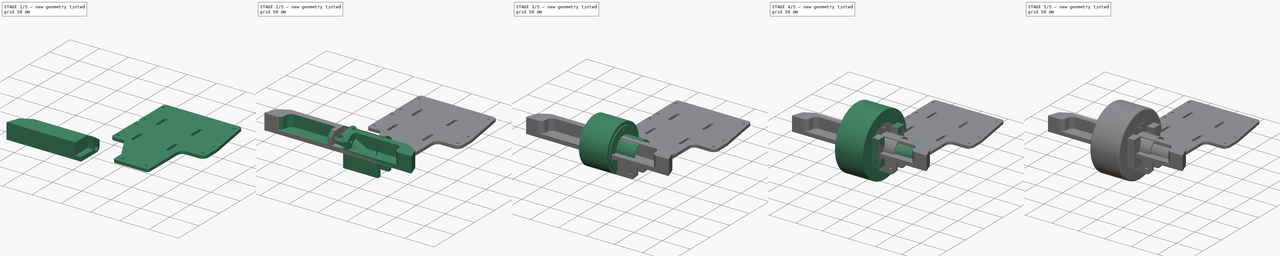
[diagram: build sequence overview — one tinted view per stage of 5, left to right]
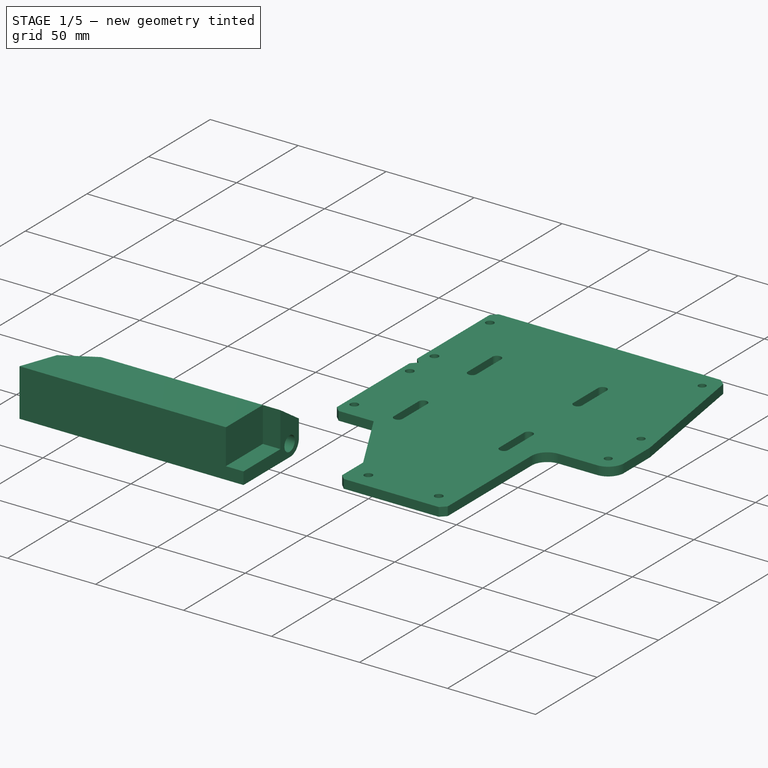
[diagram: stage 1 of 5 — iso view after this stage's code; geometry added in this stage tinted green]
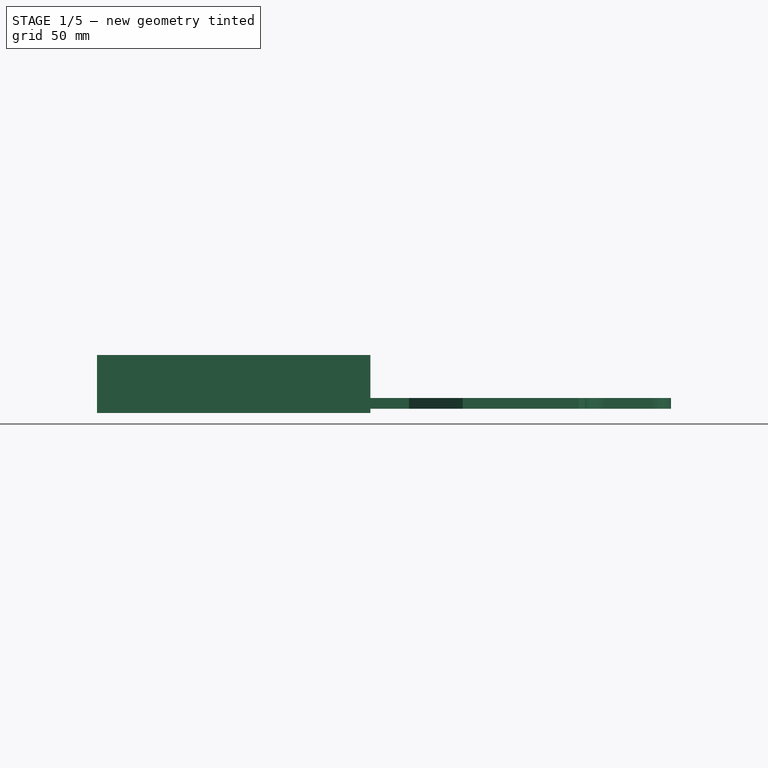
[diagram: stage 1 of 5 — front view after this stage's code; geometry added in this stage tinted green]
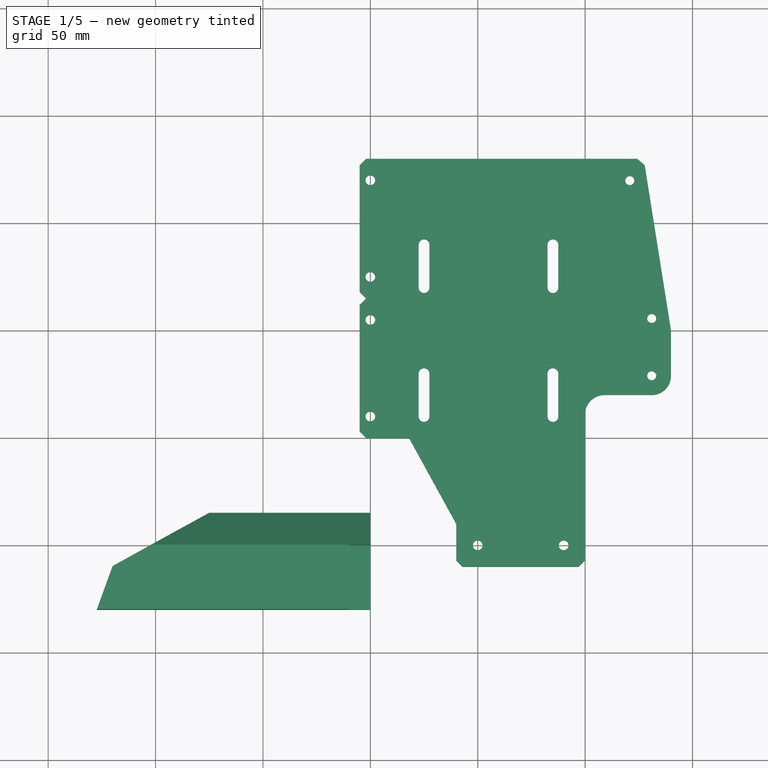
[diagram: stage 1 of 5 — top view after this stage's code; geometry added in this stage tinted green]
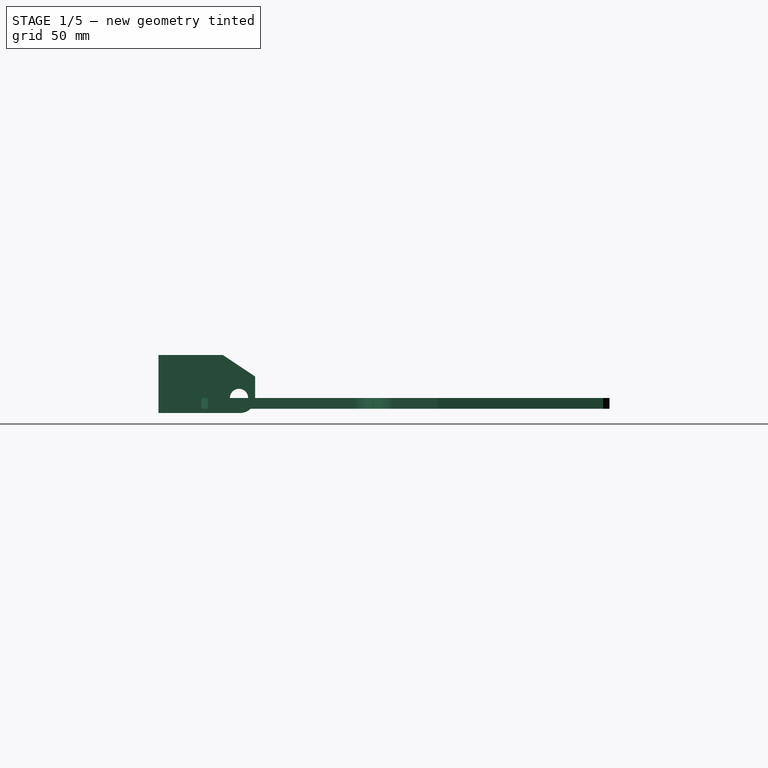
[diagram: stage 1 of 5 — right view after this stage's code; geometry added in this stage tinted green]
FCSTD DOCUMENT  (FreeCAD 2024.113R14555 (Git shallow))
Label: POC_Motorisation
License: All rights reserved
LicenseURL: https://en.wikipedia.org/wiki/All_rights_reserved
objects: Sketcher::SketchObject×41, PartDesign::Pocket×21, PartDesign::Pad×20, PartDesign::Chamfer×15, PartDesign::Body×14, PartDesign::Fillet×7, Part::SubShapeBinder×4, PartDesign::Mirrored×4, App::Link×3, App::Part×3, PartDesign::Plane×2, TechDraw::DrawSVGTemplate×2, TechDraw::DrawProjGroupItem×2, TechDraw::DrawProjGroup×2, TechDraw::DrawPage×2, PartDesign::PolarPattern×1
note: 306 computed .brp shape members not serialized (recipe doc carries the construction recipe); baked Part::Feature solids carry a one-line shape summary decoded from their .brp

FEATURE [PartDesign::Body] Body011  label="SupportAccelero"
  AutoGroupSolids = false
  ClaimAllChildren = false
  ExportMode = 0
  Group = -> [Sketch030,Pad016,Chamfer007,Chamfer008]
  InvalidShape = false
  Origin = -> Origin014
  Placement = pos=(0,171,-17.3) rot=(0,0,1;0rad)
  Tip = -> Chamfer008
  TreeRank = 256
  ValidateShape = false
  _ExportChildren = -> [Pad016,Chamfer007,Chamfer008]
  _GroupVersion = 1
FEATURE [Sketcher::SketchObject] Sketch031
  ArcFitTolerance = 1e-06
  AttachmentSupport = -> [XY_Plane014]
  ExternalBSplineMaxDegree = 5
  ExternalBSplineTolerance = 0.0001
  FullyConstrained = true
  InternalTolerance = 1e-06
  InvalidShape = false
  MakeInternals = false
  MapMode = 5
  Support = -> [XY_Plane014]
  TreeRank = 271
  ValidateShape = false
  sketch-geometry (6):
    g0: LineSegment StartX=0 StartY=0 StartZ=0 EndX=0 EndY=15 EndZ=0
    g1: LineSegment StartX=0 StartY=15 StartZ=0 EndX=-75 EndY=15 EndZ=0
    g2: LineSegment StartX=0 StartY=0 StartZ=0 EndX=0 EndY=-30 EndZ=0
    g3: LineSegment StartX=-75 StartY=15 StartZ=0 EndX=-120 EndY=-10 EndZ=0
    g4: LineSegment StartX=-120 StartY=-10 StartZ=0 EndX=-127.279 EndY=-30 EndZ=0
    g5: LineSegment StartX=0 StartY=-30 StartZ=0 EndX=-127.279 EndY=-30 EndZ=0
  constraints (17):
    c: Coincident(g0,g-1)
    c: PointOnObject(g0,g-2)
    c: Coincident(g1,g0)
    c: Horizontal(g1)
    c: Coincident(g2,g0)
    c: PointOnObject(g2,g-2)
    c: Coincident(g3,g1)
    c: Coincident(g4,g3)
    c: Coincident(g5,g2)
    c: Coincident(g5,g4)
    c: Horizontal(g5)
    c: DistanceY(g0,g0) = 15
    c: DistanceY(g2,g0) = 30
    c: DistanceY(g4,g4) = 20
    c: DistanceX(g1,g1) = 75
    c: DistanceX(g3) = -120
    c: Angle(g5,g4) = 1.22173
FEATURE [PartDesign::Pad] Pad017
  AddSubType = 0
  AlongSketchNormal = false
  AutoTaperInnerAngle = true
  CheckUpToFaceLimits = true
  ClaimChildren = false
  Direction = (0,0,1)
  Fit = 0
  FitJoin = 0
  InnerFit = 0
  InnerFitJoin = 0
  InvalidShape = false
  Length = 20
  Length2 = 7
  Linearize = true
  NewSolid = false
  Profile = -> Sketch031
  ReferenceAxis = -> Sketch031 [N_Axis]
  Refine = true
  Suppress = false
  TaperInnerAngle = 0
  TaperInnerAngleRev = 0
  TreeRank = 272
  Type = 4
  ValidateShape = true
  _ProfileBasedVersion = 1
FEATURE [Sketcher::SketchObject] Sketch032
  ArcFitTolerance = 1e-06
  AttachmentSupport = -> [Pad017]
  ExternalBSplineMaxDegree = 5
  ExternalBSplineTolerance = 0.0001
  ExternalGeometry = -> [Pad017]
  FullyConstrained = true
  InternalTolerance = 1e-06
  InvalidShape = false
  MakeInternals = false
  MapMode = 5
  Placement = pos=(0,0,20) rot=(0,0,1;0rad)
  Support = -> [Pad017]
  TreeRank = 273
  ValidateShape = false
  sketch-geometry (4):
    g0: LineSegment StartX=0 StartY=0 StartZ=0 EndX=-10 EndY=0 EndZ=0
    g1: LineSegment StartX=-10 StartY=0 StartZ=0 EndX=-10 EndY=-30 EndZ=0
    g2: LineSegment StartX=-10 StartY=-30 StartZ=0 EndX=0 EndY=-30 EndZ=0
    g3: LineSegment StartX=0 StartY=-30 StartZ=0 EndX=0 EndY=0 EndZ=0
  constraints (11):
    c: Coincident(g0,g1)
    c: Coincident(g1,g2)
    c: Coincident(g2,g3)
    c: Coincident(g3,g0)
    c: Horizontal(g0)
    c: Horizontal(g2)
    c: Vertical(g1)
    c: Vertical(g3)
    c: Coincident(g0,g-1)
    c: PointOnObject(g1,g-3)
    c: DistanceX(g0,g0) = 10
FEATURE [PartDesign::Pocket] Pocket013
  AddSubType = 1
  AlongSketchNormal = false
  AutoTaperInnerAngle = true
  BaseFeature = -> Pad017
  CheckUpToFaceLimits = true
  ClaimChildren = false
  Direction = (0,0,-1)
  Fit = 0
  FitJoin = 0
  InnerFit = 0
  InnerFitJoin = 0
  InvalidShape = false
  Length = 20
  Length2 = 10
  Linearize = true
  NewSolid = false
  Profile = -> Sketch032
  ReferenceAxis = -> Sketch032 [N_Axis]
  Refine = true
  Suppress = false
  TaperInnerAngle = 0
  TaperInnerAngleRev = 0
  TreeRank = 274
  Type = 0
  ValidateShape = true
  _ProfileBasedVersion = 1
  _Version = 1
FEATURE [Sketcher::SketchObject] Sketch033
  ArcFitTolerance = 1e-06
  AttachmentSupport = -> [Pocket013]
  ExternalBSplineMaxDegree = 5
  ExternalBSplineTolerance = 0.0001
  FullyConstrained = true
  InternalTolerance = 1e-06
  InvalidShape = false
  MakeInternals = false
  MapMode = 5
  Placement = pos=(0,0,0) rot=(0.57735,0.57735,0.57735;2.0944rad)
  Support = -> [Pocket013]
  TreeRank = 275
  ValidateShape = false
  sketch-geometry (2):
    g0: Circle CenterX=7.5 CenterY=0 CenterZ=0 NormalX=0 NormalY=0 NormalZ=1 AngleXU=0 Radius=4.25
    g1: Circle [constr] CenterX=7.5 CenterY=0 CenterZ=0 NormalX=0 NormalY=0 NormalZ=1 AngleXU=0 Radius=11
  constraints (5):
    c: PointOnObject(g0,g-1)
    c: Coincident(g1,g0)
    c: Diameter(g1) = 22
    c: Diameter(g0) = 8.5
    c: DistanceX(g-1,g0) = 7.5
FEATURE [PartDesign::Pocket] Pocket014
  AddSubType = 1
  AlongSketchNormal = false
  AutoTaperInnerAngle = true
  BaseFeature = -> Pocket013
  CheckUpToFaceLimits = true
  ClaimChildren = false
  Direction = (-1,0,0)
  Fit = 0
  FitJoin = 0
  InnerFit = 0
  InnerFitJoin = 0
  InvalidShape = false
  Length = 5
  Length2 = 10
  Linearize = true
  NewSolid = false
  Profile = -> Sketch033
  ReferenceAxis = -> Sketch033 [N_Axis]
  Refine = true
  Suppress = false
  TaperInnerAngle = 0
  TaperInnerAngleRev = 0
  TreeRank = 276
  Type = 1
  ValidateShape = true
  _ProfileBasedVersion = 1
  _Version = 1
FEATURE [PartDesign::Plane] DatumPlane001
  AttachmentOffset = pos=(0,0,-75) rot=(0,0,1;0rad)
  AttachmentSupport = -> [YZ_Plane014]
  InvalidShape = false
  Length = 45
  MapMode = 2
  MinimumLength = 10
  MinimumWidth = 10
  Placement = pos=(-75,1.67e-14,-1.67e-14) rot=(0.57735,0.57735,0.57735;2.0944rad)
  ResizeMode = 0
  Support = -> [YZ_Plane014]
  TreeRank = 277
  ValidateShape = false
  Width = 27
FEATURE [Sketcher::SketchObject] Sketch034
  ArcFitTolerance = 1e-06
  AttachmentSupport = -> [DatumPlane001]
  ExternalBSplineMaxDegree = 5
  ExternalBSplineTolerance = 0.0001
  ExternalGeometry = -> [Pocket014]
  FullyConstrained = true
  InternalTolerance = 1e-06
  InvalidShape = false
  MakeInternals = false
  MapMode = 5
  Placement = pos=(-75,1.67e-14,-1.67e-14) rot=(0.57735,0.57735,0.57735;2.0944rad)
  Support = -> [DatumPlane001]
  TreeRank = 278
  ValidateShape = false
  sketch-geometry (1):
    g0: Circle CenterX=7.5 CenterY=0 CenterZ=0 NormalX=0 NormalY=0 NormalZ=1 AngleXU=0 Radius=12
  constraints (2):
    c: Coincident(g0,g-3)
    c: Diameter(g0) = 24
FEATURE [PartDesign::Pocket] Pocket015
  AddSubType = 1
  AlongSketchNormal = false
  AutoTaperInnerAngle = true
  BaseFeature = -> Pocket014
  CheckUpToFaceLimits = true
  ClaimChildren = false
  Direction = (-1,1e-16,-1e-16)
  Fit = 0
  FitJoin = 0
  InnerFit = 0
  InnerFitJoin = 0
  InvalidShape = false
  Length = 55
  Length2 = 10
  Linearize = true
  NewSolid = false
  Profile = -> Sketch034
  ReferenceAxis = -> Sketch034 [N_Axis]
  Refine = true
  Suppress = false
  TaperInnerAngle = 0
  TaperInnerAngleRev = 0
  TreeRank = 279
  Type = 0
  ValidateShape = true
  _ProfileBasedVersion = 1
  _Version = 1
FEATURE [PartDesign::Fillet] Fillet003
  AddSubType = 0
  Base = -> Pocket015 [Edge4]
  BaseFeature = -> Pocket015
  InvalidShape = false
  NewSolid = false
  Radius = 7
  Refine = true
  SupportTransform = false
  Suppress = false
  TreeRank = 280
  UseAllEdges = false
  ValidateShape = true
FEATURE [PartDesign::Chamfer] Chamfer009
  AddSubType = 0
  Angle = 45
  Base = -> Fillet003 [Edge3]
  BaseFeature = -> Fillet003
  ChamferType = 1
  FlipDirection = false
  InvalidShape = false
  NewSolid = false
  Refine = true
  Size = 10
  Size2 = 15
  SupportTransform = false
  Suppress = false
  TreeRank = 281
  UseAllEdges = false
  ValidateShape = true
FEATURE [PartDesign::Body] Body012  label="Pare-Choc"
  AutoGroupSolids = false
  ClaimAllChildren = false
  ExportMode = 0
  Group = -> [Sketch031,Pad017,Sketch032,Pocket013,Sketch033,Pocket014,DatumPlane001,Sketch034,Pocket015,Fillet003,Chamfer009,Chamfer010,Sketch035,Pocket016,Sketch036,Pocket017,Fillet004,Mirrored003,Chamfer011,Sketch037,Pocket018,Chamfer012]
  InvalidShape = false
  Origin = -> Origin015
  Placement = pos=(0,210,-37.3) rot=(0,0,1;0rad)
  Tip = -> Chamfer012
  TreeRank = 270
  ValidateShape = false
  _ExportChildren = -> [Pad017,Pocket013,Pocket014,DatumPlane001,Pocket015,Fillet003,Chamfer009,Chamfer010,Pocket016,Pocket017,Fillet004,Mirrored003,Chamfer011,Pocket018,Chamfer012]
  _GroupVersion = 1
FEATURE [Part::SubShapeBinder] Import003  label="Import003(Chamfer012)"
  BindCopyOnChange = 0
  BindMode = 0
  ClaimChildren = false
  Context = -> Body010 [Import003.]
  EdgeTolerance = 1e-06
  FillStyle = 0
  Fuse = false
  InvalidShape = false
  MakeFace = false
  MergeEdges = true
  OffsetFill = false
  OffsetIntersection = false
  OffsetJoinType = 0
  OffsetOpenResult = false
  Outline = false
  PartialLoad = false
  Relative = true
  SplitEdges = false
  Support = -> [Body012[Chamfer012.]]
  TightBound = false
  TreeRank = 293
  ValidateShape = false
  _Version = 8
FEATURE [Sketcher::SketchObject] Sketch029
  ArcFitTolerance = 1e-06
  AttachmentSupport = -> [XY_Plane012]
  ExternalBSplineMaxDegree = 5
  ExternalBSplineTolerance = 0.0001
  ExternalGeometry = -> [Import003]
  FullyConstrained = true
  InternalTolerance = 1e-06
  InvalidShape = false
  MakeInternals = false
  MapMode = 5
  Support = -> [XY_Plane012]
  TreeRank = 246
  ValidateShape = false
  sketch-geometry (16):
    g0: LineSegment StartX=100 StartY=-10 StartZ=0 EndX=100 EndY=70 EndZ=0
    g1: LineSegment StartX=100 StartY=70 StartZ=0 EndX=140 EndY=70 EndZ=0
    g2: LineSegment StartX=140 StartY=70 StartZ=0 EndX=140 EndY=100 EndZ=0
    g3: LineSegment StartX=140 StartY=100 StartZ=0 EndX=127.279 EndY=180 EndZ=0
    g4: LineSegment StartX=127.279 StartY=180 StartZ=0 EndX=5 EndY=180 EndZ=0
    g5: LineSegment StartX=-5 StartY=50 StartZ=0 EndX=18 EndY=50 EndZ=0
    g6: LineSegment StartX=18 StartY=50 StartZ=0 EndX=40 EndY=10 EndZ=0
    g7: LineSegment StartX=40 StartY=10 StartZ=0 EndX=40 EndY=-10 EndZ=0
    g8: LineSegment StartX=40 StartY=-10 StartZ=0 EndX=100 EndY=-10 EndZ=0
    g9: LineSegment StartX=5 StartY=180 StartZ=0 EndX=5 EndY=115 EndZ=0
    g10: LineSegment StartX=5 StartY=115 StartZ=0 EndX=-5 EndY=115 EndZ=0
    g11: LineSegment StartX=-5 StartY=115 StartZ=0 EndX=-5 EndY=50 EndZ=0
    g12: Circle CenterX=90 CenterY=0 CenterZ=0 NormalX=0 NormalY=0 NormalZ=1 AngleXU=0 Radius=2.25
    g13: Circle CenterX=50 CenterY=0 CenterZ=0 NormalX=0 NormalY=0 NormalZ=1 AngleXU=0 Radius=2.25
    g14: Circle CenterX=0 CenterY=60 CenterZ=0 NormalX=0 NormalY=0 NormalZ=1 AngleXU=0 Radius=2.25
    g15: Circle CenterX=0 CenterY=105 CenterZ=0 NormalX=0 NormalY=0 NormalZ=1 AngleXU=0 Radius=2.25
  constraints (50):
    c: Vertical(g0)
    c: Coincident(g1,g0)
    c: Horizontal(g1)
    c: Coincident(g1,g2)
    c: Vertical(g2)
    c: Coincident(g2,g3)
    c: Coincident(g3,g4)
    c: Horizontal(g4)
    c: Horizontal(g5)
    c: Coincident(g5,g6)
    c: Coincident(g6,g7)
    c: Vertical(g7)
    c: Coincident(g7,g8)
    c: Coincident(g8,g0)
    c: Horizontal(g8)
    c: DistanceY(g0,g-1) = 10
    c: DistanceX(g-1,g0) = 100
    c: DistanceY(g7,g7) = 20
    c: DistanceX(g-1,g6) = 40
    c: DistanceY(g0,g0) = 80
    c: DistanceX(g1,g1) = 40
    c: Coincident(g4,g9)
    c: Vertical(g9)
    c: Coincident(g9,g10)
    c: Horizontal(g10)
    c: Coincident(g10,g11)
    c: Coincident(g11,g5)
    c: Vertical(g11)
    c: DistanceY(g-1,g4) = 180
    c: DistanceX(g5,g-1) = 5
    c: DistanceY(g-1,g5) = 50
    c: DistanceX(g5) = 18
    c: Equal(g11,g9)
    c: PointOnObject(g12,g-1)
    c: PointOnObject(g13,g-1)
    c: Equal(g13,g12)
    c: Diameter(g12) = 4.5
    c: DistanceX(g12,g0) = 10
    c: DistanceX(g-1,g13) = 50
    c: PointOnObject(g14,g-2)
    c: PointOnObject(g15,g-2)
    c: DistanceY(g15,g10) = 10
    c: DistanceY(g5,g14) = 10
    c: Equal(g14,g15)
    c: Equal(g15,g13)
    c: DistanceX(g-1,g9) = 5
    c: DistanceX(g5,g1) = 145
    c: DistanceY(g0,g4) = 190
    c: PointOnObject(g3,g-3)
    c: DistanceY(g2,g2) = 30
FEATURE [PartDesign::Pad] Pad018
  AddSubType = 0
  AlongSketchNormal = false
  AutoTaperInnerAngle = true
  CheckUpToFaceLimits = true
  ClaimChildren = false
  Direction = (0,0,1)
  Fit = 0
  FitJoin = 0
  InnerFit = 0
  InnerFitJoin = 0
  InvalidShape = false
  Length = 5
  Length2 = 10
  Linearize = true
  NewSolid = false
  Profile = -> Sketch029
  ReferenceAxis = -> Sketch029 [N_Axis]
  Refine = true
  Reversed = true
  Suppress = false
  TaperInnerAngle = 0
  TaperInnerAngleRev = 0
  TreeRank = 294
  Type = 0
  ValidateShape = true
  _ProfileBasedVersion = 1
FEATURE [PartDesign::Fillet] Fillet005
  AddSubType = 0
  Base = -> Pad018 [Edge2,Edge5]
  BaseFeature = -> Pad018
  InvalidShape = false
  NewSolid = false
  Radius = 9
  Refine = true
  SupportTransform = false
  Suppress = false
  TreeRank = 295
  UseAllEdges = false
  ValidateShape = true
FEATURE [PartDesign::Chamfer] Chamfer013
  AddSubType = 0
  Angle = 45
  Base = -> Fillet005 [Edge48,Edge46,Edge49,Edge47,Edge3,Edge24]
  BaseFeature = -> Fillet005
  ChamferType = 0
  FlipDirection = false
  InvalidShape = false
  NewSolid = false
  Refine = true
  Size = 3
  Size2 = 1
  SupportTransform = false
  Suppress = false
  TreeRank = 296
  UseAllEdges = false
  ValidateShape = true
FEATURE [Sketcher::SketchObject] Sketch038
  ArcFitTolerance = 1e-06
  AttachmentSupport = -> [Chamfer013]
  ExternalBSplineMaxDegree = 5
  ExternalBSplineTolerance = 0.0001
  ExternalGeometry = -> [Chamfer013]
  FullyConstrained = true
  InternalTolerance = 1e-06
  InvalidShape = false
  MakeInternals = false
  MapMode = 5
  Support = -> [Chamfer013]
  TreeRank = 297
  ValidateShape = false
  sketch-geometry (21):
    g0: ArcOfCircle CenterX=25 CenterY=80 CenterZ=0 NormalX=0 NormalY=0 NormalZ=1 AngleXU=0 Radius=2.5 StartAngle=0 EndAngle=3.14159
    g1: ArcOfCircle CenterX=25 CenterY=60 CenterZ=0 NormalX=0 NormalY=0 NormalZ=1 AngleXU=0 Radius=2.5 StartAngle=3.14159 EndAngle=6.28319
    g2: LineSegment StartX=22.5 StartY=80 StartZ=0 EndX=22.5 EndY=60 EndZ=0
    g3: LineSegment StartX=27.5 StartY=60 StartZ=0 EndX=27.5 EndY=80 EndZ=0
    g4: ArcOfCircle CenterX=85 CenterY=80 CenterZ=0 NormalX=0 NormalY=0 NormalZ=1 AngleXU=0 Radius=2.5 StartAngle=-1.8e-15 EndAngle=3.14159
    g5: ArcOfCircle CenterX=85 CenterY=60 CenterZ=0 NormalX=0 NormalY=0 NormalZ=1 AngleXU=0 Radius=2.5 StartAngle=3.14159 EndAngle=6.28319
    g6: LineSegment StartX=82.5 StartY=80 StartZ=0 EndX=82.5 EndY=60 EndZ=0
    g7: LineSegment StartX=87.5 StartY=60 StartZ=0 EndX=87.5 EndY=80 EndZ=0
    g8: ArcOfCircle CenterX=25 CenterY=140 CenterZ=0 NormalX=0 NormalY=0 NormalZ=1 AngleXU=0 Radius=2.5 StartAngle=0 EndAngle=3.14159
    g9: ArcOfCircle CenterX=25 CenterY=120 CenterZ=0 NormalX=0 NormalY=0 NormalZ=1 AngleXU=0 Radius=2.5 StartAngle=3.14159 EndAngle=6.28319
    g10: LineSegment StartX=22.5 StartY=140 StartZ=0 EndX=22.5 EndY=120 EndZ=0
    g11: LineSegment StartX=27.5 StartY=120 StartZ=0 EndX=27.5 EndY=140 EndZ=0
    g12: ArcOfCircle CenterX=85 CenterY=140 CenterZ=0 NormalX=0 NormalY=0 NormalZ=1 AngleXU=0 Radius=2.5 StartAngle=-4.4e-15 EndAngle=3.14159
    g13: ArcOfCircle CenterX=85 CenterY=120 CenterZ=0 NormalX=0 NormalY=0 NormalZ=1 AngleXU=0 Radius=2.5 StartAngle=3.14159 EndAngle=6.28319
    g14: LineSegment StartX=82.5 StartY=140 StartZ=0 EndX=82.5 EndY=120 EndZ=0
    g15: LineSegment StartX=87.5 StartY=120 StartZ=0 EndX=87.5 EndY=140 EndZ=0
    g16: Circle CenterX=120.793 CenterY=169.851 CenterZ=0 NormalX=0 NormalY=0 NormalZ=1 AngleXU=0 Radius=2.1
    g17: Circle CenterX=131 CenterY=79 CenterZ=0 NormalX=0 NormalY=0 NormalZ=1 AngleXU=0 Radius=2.1
    g18: Circle CenterX=131 CenterY=105.657 CenterZ=0 NormalX=0 NormalY=0 NormalZ=1 AngleXU=0 Radius=2.1
    g19: LineSegment [constr] StartX=120.793 StartY=169.851 StartZ=0 EndX=131 EndY=105.657 EndZ=0
    g20: LineSegment [constr] StartX=131 StartY=105.657 StartZ=0 EndX=138.901 EndY=106.913 EndZ=0
  constraints (53):
    c: Tangent(g0,g2) = -1.5708
    c: Tangent(g2,g1) = -1.5708
    c: Tangent(g1,g3) = -1.5708
    c: Tangent(g3,g0) = -1.5708
    c: Equal(g0,g1)
    c: Vertical(g2)
    c: Tangent(g4,g6) = -1.5708
    c: Tangent(g6,g5) = -1.5708
    c: Tangent(g5,g7) = -1.5708
    c: Tangent(g7,g4) = -1.5708
    c: Equal(g4,g5)
    c: Vertical(g6)
    c: Tangent(g8,g10) = -1.5708
    c: Tangent(g10,g9) = -1.5708
    c: Tangent(g9,g11) = -1.5708
    c: Tangent(g11,g8) = -1.5708
    c: Equal(g8,g9)
    c: Vertical(g10)
    c: Tangent(g12,g14) = -1.5708
    c: Tangent(g14,g13) = -1.5708
    c: Tangent(g13,g15) = -1.5708
    c: Tangent(g15,g12) = -1.5708
    c: Equal(g12,g13)
    c: Vertical(g14)
    c: DistanceX(g8,g12) = 60
    c: Equal(g4,g8)
    c: Equal(g8,g0)
    c: Equal(g0,g13)
    c: Vertical(g0,g9)
    c: Vertical(g4,g13)
    c: Equal(g6,g3)
    c: Equal(g3,g11)
    c: Equal(g11,g14)
    c: Horizontal(g8,g12)
    c: Horizontal(g4,g0)
    c: Radius(g12) = 2.5
    c: DistanceY(g6,g6) = 20
    c: DistanceY(g1,g8) = 80
    c: DistanceX(g-1,g1) = 25
    c: DistanceY(g-1,g1) = 60
    c: Equal(g17,g16)
    c: Diameter(g17) = 4.2
    c: Coincident(g17,g-3)
    c: Equal(g18,g16)
    c: Coincident(g19,g16)
    c: Coincident(g19,g18)
    c: Parallel(g19,g-4)
    c: Coincident(g20,g18)
    c: PointOnObject(g20,g-4)
    c: Perpendicular(g19,g20)
    c: Distance(g20) = 8
    c: Vertical(g17,g18)
    c: Distance(g19) = 65
FEATURE [PartDesign::Pocket] Pocket019
  AddSubType = 1
  AlongSketchNormal = false
  AutoTaperInnerAngle = true
  BaseFeature = -> Chamfer013
  CheckUpToFaceLimits = true
  ClaimChildren = false
  Direction = (0,0,-1)
  Fit = 0
  FitJoin = 0
  InnerFit = 0
  InnerFitJoin = 0
  InvalidShape = false
  Length = 5
  Length2 = 10
  Linearize = true
  NewSolid = false
  Profile = -> Sketch038
  ReferenceAxis = -> Sketch038 [N_Axis]
  Refine = true
  Suppress = false
  TaperInnerAngle = 0
  TaperInnerAngleRev = 0
  TreeRank = 298
  Type = 1
  ValidateShape = true
  _ProfileBasedVersion = 1
  _Version = 1
FEATURE [PartDesign::Body] Body010  label="Plaque"
  AutoGroupSolids = false
  ClaimAllChildren = false
  ExportMode = 0
  Group = -> [Sketch029,Import003,Pad018,Fillet005,Chamfer013,Sketch038,Pocket019]
  InvalidShape = false
  Origin = -> Origin013
  Placement = pos=(0,0,-37.3) rot=(0,0,1;0rad)
  Tip = -> Pocket019
  TreeRank = 245
  ValidateShape = false
  _ExportChildren = -> [Import003,Pad018,Fillet005,Chamfer013,Pocket019]
  _GroupVersion = 1
FEATURE [TechDraw::DrawSVGTemplate] Template
  Height = 210
  Orientation = 1
  Template = <path>
  TreeRank = 300
  Width = 297
FEATURE [TechDraw::DrawProjGroupItem] ProjItem  label="Front"
  CoarseView = false
  Direction = (0,0,1)
  Focus = 100
  HardHidden = false
  IsoCount = 0
  IsoHidden = false
  IsoVisible = false
  LockPosition = true
  Perspective = false
  Rotation = 0
  RotationVector = (0,1,0)
  ScaleType = 2
  ScrubCount = 0
  SeamHidden = false
  SeamVisible = true
  SmoothHidden = false
  SmoothVisible = true
  Source = -> [Pocket019]
  TreeRank = 303
  Type = 0
  X = 0
  XDirection = (0,1,0)
  Y = 0
FEATURE [TechDraw::DrawProjGroup] ProjGroup
  Anchor = -> ProjItem
  AutoDistribute = true
  LockPosition = false
  ProjectionType = 0
  Rotation = 0
  ScaleType = 0
  Source = -> [Pocket019]
  TreeRank = 304
  Views = -> [ProjItem]
  X = 96.4292
  Y = 134.469
  spacingX = 15
  spacingY = 15
FEATURE [TechDraw::DrawPage] Page
  KeepUpdated = true
  NextBalloonIndex = 1
  ProjectionType = 0
  Template = -> Template
  TreeRank = 301
  Views = -> [ProjGroup]
FEATURE [Sketcher::SketchObject] Sketch039
  ArcFitTolerance = 1e-06
  AttachmentSupport = -> [XY_Plane015]
  ExternalBSplineMaxDegree = 5
  ExternalBSplineTolerance = 0.0001
  FullyConstrained = true
  InternalTolerance = 1e-06
  InvalidShape = false
  MakeInternals = false
  MapMode = 5
  Support = -> [XY_Plane015]
  TreeRank = 246
  ValidateShape = false
  sketch-geometry (16):
    g0: LineSegment StartX=100 StartY=-10 StartZ=0 EndX=100 EndY=70 EndZ=0
    g1: LineSegment StartX=100 StartY=70 StartZ=0 EndX=140 EndY=70 EndZ=0
    g2: LineSegment StartX=140 StartY=70 StartZ=0 EndX=140 EndY=100 EndZ=0
    g3: LineSegment StartX=140 StartY=100 StartZ=0 EndX=127.28 EndY=180 EndZ=0
    g4: LineSegment StartX=127.28 StartY=180 StartZ=0 EndX=-5 EndY=180 EndZ=0
    g5: LineSegment StartX=5 StartY=50 StartZ=0 EndX=18 EndY=50 EndZ=0
    g6: LineSegment StartX=18 StartY=50 StartZ=0 EndX=40 EndY=10 EndZ=0
    g7: LineSegment StartX=40 StartY=10 StartZ=0 EndX=40 EndY=-10 EndZ=0
    g8: LineSegment StartX=40 StartY=-10 StartZ=0 EndX=100 EndY=-10 EndZ=0
    g9: LineSegment StartX=-5 StartY=180 StartZ=0 EndX=-5 EndY=115 EndZ=0
    g10: Circle CenterX=90 CenterY=0 CenterZ=0 NormalX=0 NormalY=0 NormalZ=1 AngleXU=0 Radius=2.25
    g11: Circle CenterX=50 CenterY=0 CenterZ=0 NormalX=0 NormalY=0 NormalZ=1 AngleXU=0 Radius=2.25
    g12: Circle CenterX=0 CenterY=125 CenterZ=0 NormalX=0 NormalY=0 NormalZ=1 AngleXU=0 Radius=2.25
    g13: Circle CenterX=0 CenterY=170 CenterZ=0 NormalX=0 NormalY=0 NormalZ=1 AngleXU=0 Radius=2.25
    g14: LineSegment StartX=-5 StartY=115 StartZ=0 EndX=5 EndY=115 EndZ=0
    g15: LineSegment StartX=5 StartY=115 StartZ=0 EndX=5 EndY=50 EndZ=0
  constraints (50):
    c: Vertical(g0)
    c: Coincident(g1,g0)
    c: Horizontal(g1)
    c: Coincident(g1,g2)
    c: Vertical(g2)
    c: Coincident(g2,g3)
    c: Coincident(g3,g4)
    c: Horizontal(g4)
    c: Horizontal(g5)
    c: Coincident(g5,g6)
    c: Coincident(g6,g7)
    c: Vertical(g7)
    c: Coincident(g7,g8)
    c: Coincident(g8,g0)
    c: Horizontal(g8)
    c: DistanceY(g0,g-1) = 10
    c: DistanceX(g-1,g0) = 100
    c: DistanceY(g7,g7) = 20
    c: DistanceX(g-1,g6) = 40
    c: DistanceY(g0,g0) = 80
    c: DistanceX(g1,g1) = 40
    c: Coincident(g4,g9)
    c: Vertical(g9)
    c: DistanceY(g-1,g4) = 180
    c: DistanceY(g-1,g5) = 50
    c: DistanceX(g5) = 18
    c: PointOnObject(g10,g-1)
    c: PointOnObject(g11,g-1)
    c: Equal(g11,g10)
    c: Diameter(g10) = 4.5
    c: DistanceX(g10,g0) = 10
    c: DistanceX(g-1,g11) = 50
    c: PointOnObject(g12,g-2)
    c: PointOnObject(g13,g-2)
    c: Equal(g12,g13)
    c: Equal(g13,g11)
    c: DistanceX(g5,g1) = 135
    c: DistanceY(g0,g4) = 190
    c: DistanceY(g2,g2) = 30
    c: DistanceX(g3) = 127.28
    c: DistanceX(g9) = -5
    c: Coincident(g9,g14)
    c: Horizontal(g14)
    c: Coincident(g14,g15)
    c: Vertical(g15)
    c: Equal(g15,g9)
    c: DistanceX(g14) = 5
    c: Coincident(g15,g5)
    c: DistanceY(g9,g12) = 10
    c: DistanceY(g13,g4) = 10
FEATURE [PartDesign::Pad] Pad020
  AddSubType = 0
  AlongSketchNormal = false
  AutoTaperInnerAngle = true
  CheckUpToFaceLimits = true
  ClaimChildren = false
  Direction = (0,0,1)
  Fit = 0
  FitJoin = 0
  InnerFit = 0
  InnerFitJoin = 0
  InvalidShape = false
  Length = 5
  Length2 = 10
  Linearize = true
  NewSolid = false
  Profile = -> Sketch039
  ReferenceAxis = -> Sketch039 [N_Axis]
  Refine = true
  Reversed = true
  Suppress = false
  TaperInnerAngle = 0
  TaperInnerAngleRev = 0
  TreeRank = 294
  Type = 0
  ValidateShape = true
  _ProfileBasedVersion = 1
FEATURE [PartDesign::Fillet] Fillet008
  AddSubType = 0
  Base = -> Pad020 [Edge2,Edge5]
  BaseFeature = -> Pad020
  InvalidShape = false
  NewSolid = false
  Radius = 9
  Refine = true
  SupportTransform = false
  Suppress = false
  TreeRank = 295
  UseAllEdges = false
  ValidateShape = true
FEATURE [PartDesign::Chamfer] Chamfer018
  AddSubType = 0
  Angle = 45
  Base = -> Fillet008 [Edge50,Edge46,Edge49,Edge47,Edge3,Edge24]
  BaseFeature = -> Fillet008
  ChamferType = 0
  FlipDirection = false
  InvalidShape = false
  NewSolid = false
  Refine = true
  Size = 3
  Size2 = 1
  SupportTransform = false
  Suppress = false
  TreeRank = 296
  UseAllEdges = false
  ValidateShape = true
FEATURE [Sketcher::SketchObject] Sketch047
  ArcFitTolerance = 1e-06
  AttachmentSupport = -> [Chamfer018]
  ExternalBSplineMaxDegree = 5
  ExternalBSplineTolerance = 0.0001
  ExternalGeometry = -> [Chamfer018]
  FullyConstrained = true
  InternalTolerance = 1e-06
  InvalidShape = false
  MakeInternals = false
  MapMode = 5
  Support = -> [Chamfer018]
  TreeRank = 297
  ValidateShape = false
  sketch-geometry (21):
    g0: ArcOfCircle CenterX=25 CenterY=80 CenterZ=0 NormalX=0 NormalY=0 NormalZ=1 AngleXU=0 Radius=2.5 StartAngle=0 EndAngle=3.14159
    g1: ArcOfCircle CenterX=25 CenterY=60 CenterZ=0 NormalX=0 NormalY=0 NormalZ=1 AngleXU=0 Radius=2.5 StartAngle=3.14159 EndAngle=6.28319
    g2: LineSegment StartX=22.5 StartY=80 StartZ=0 EndX=22.5 EndY=60 EndZ=0
    g3: LineSegment StartX=27.5 StartY=60 StartZ=0 EndX=27.5 EndY=80 EndZ=0
    g4: ArcOfCircle CenterX=85 CenterY=80 CenterZ=0 NormalX=0 NormalY=0 NormalZ=1 AngleXU=0 Radius=2.5 StartAngle=-1.8e-15 EndAngle=3.14159
    g5: ArcOfCircle CenterX=85 CenterY=60 CenterZ=0 NormalX=0 NormalY=0 NormalZ=1 AngleXU=0 Radius=2.5 StartAngle=3.14159 EndAngle=6.28319
    g6: LineSegment StartX=82.5 StartY=80 StartZ=0 EndX=82.5 EndY=60 EndZ=0
    g7: LineSegment StartX=87.5 StartY=60 StartZ=0 EndX=87.5 EndY=80 EndZ=0
    g8: ArcOfCircle CenterX=25 CenterY=140 CenterZ=0 NormalX=0 NormalY=0 NormalZ=1 AngleXU=0 Radius=2.5 StartAngle=0 EndAngle=3.14159
    g9: ArcOfCircle CenterX=25 CenterY=120 CenterZ=0 NormalX=0 NormalY=0 NormalZ=1 AngleXU=0 Radius=2.5 StartAngle=3.14159 EndAngle=6.28319
    g10: LineSegment StartX=22.5 StartY=140 StartZ=0 EndX=22.5 EndY=120 EndZ=0
    g11: LineSegment StartX=27.5 StartY=120 StartZ=0 EndX=27.5 EndY=140 EndZ=0
    g12: ArcOfCircle CenterX=85 CenterY=140 CenterZ=0 NormalX=0 NormalY=0 NormalZ=1 AngleXU=0 Radius=2.5 StartAngle=-4.4e-15 EndAngle=3.14159
    g13: ArcOfCircle CenterX=85 CenterY=120 CenterZ=0 NormalX=0 NormalY=0 NormalZ=1 AngleXU=0 Radius=2.5 StartAngle=3.14159 EndAngle=6.28319
    g14: LineSegment StartX=82.5 StartY=140 StartZ=0 EndX=82.5 EndY=120 EndZ=0
    g15: LineSegment StartX=87.5 StartY=120 StartZ=0 EndX=87.5 EndY=140 EndZ=0
    g16: Circle CenterX=120.793 CenterY=169.851 CenterZ=0 NormalX=0 NormalY=0 NormalZ=1 AngleXU=0 Radius=2.1
    g17: Circle CenterX=131 CenterY=79 CenterZ=0 NormalX=0 NormalY=0 NormalZ=1 AngleXU=0 Radius=2.1
    g18: Circle CenterX=131 CenterY=105.657 CenterZ=0 NormalX=0 NormalY=0 NormalZ=1 AngleXU=0 Radius=2.1
    g19: LineSegment [constr] StartX=120.793 StartY=169.851 StartZ=0 EndX=131 EndY=105.657 EndZ=0
    g20: LineSegment [constr] StartX=131 StartY=105.657 StartZ=0 EndX=138.901 EndY=106.913 EndZ=0
  constraints (53):
    c: Tangent(g0,g2) = -1.5708
    c: Tangent(g2,g1) = -1.5708
    c: Tangent(g1,g3) = -1.5708
    c: Tangent(g3,g0) = -1.5708
    c: Equal(g0,g1)
    c: Vertical(g2)
    c: Tangent(g4,g6) = -1.5708
    c: Tangent(g6,g5) = -1.5708
    c: Tangent(g5,g7) = -1.5708
    c: Tangent(g7,g4) = -1.5708
    c: Equal(g4,g5)
    c: Vertical(g6)
    c: Tangent(g8,g10) = -1.5708
    c: Tangent(g10,g9) = -1.5708
    c: Tangent(g9,g11) = -1.5708
    c: Tangent(g11,g8) = -1.5708
    c: Equal(g8,g9)
    c: Vertical(g10)
    c: Tangent(g12,g14) = -1.5708
    c: Tangent(g14,g13) = -1.5708
    c: Tangent(g13,g15) = -1.5708
    c: Tangent(g15,g12) = -1.5708
    c: Equal(g12,g13)
    c: Vertical(g14)
    c: DistanceX(g8,g12) = 60
    c: Equal(g4,g8)
    c: Equal(g8,g0)
    c: Equal(g0,g13)
    c: Vertical(g0,g9)
    c: Vertical(g4,g13)
    c: Equal(g6,g3)
    c: Equal(g3,g11)
    c: Equal(g11,g14)
    c: Horizontal(g8,g12)
    c: Horizontal(g4,g0)
    c: Radius(g12) = 2.5
    c: DistanceY(g6,g6) = 20
    c: DistanceY(g1,g8) = 80
    c: DistanceX(g-1,g1) = 25
    c: DistanceY(g-1,g1) = 60
    c: Equal(g17,g16)
    c: Diameter(g17) = 4.2
    c: Coincident(g17,g-3)
    c: Equal(g18,g16)
    c: Coincident(g19,g16)
    c: Coincident(g19,g18)
    c: Parallel(g19,g-4)
    c: Coincident(g20,g18)
    c: PointOnObject(g20,g-4)
    c: Perpendicular(g19,g20)
    c: Distance(g20) = 8
    c: Vertical(g17,g18)
    c: Distance(g19) = 65
FEATURE [PartDesign::Pocket] Pocket026
  AddSubType = 1
  AlongSketchNormal = false
  AutoTaperInnerAngle = true
  BaseFeature = -> Chamfer018
  CheckUpToFaceLimits = true
  ClaimChildren = false
  Direction = (0,0,-1)
  Fit = 0
  FitJoin = 0
  InnerFit = 0
  InnerFitJoin = 0
  InvalidShape = false
  Length = 5
  Length2 = 10
  Linearize = true
  NewSolid = false
  Profile = -> Sketch047
  ReferenceAxis = -> Sketch047 [N_Axis]
  Refine = true
  Suppress = false
  TaperInnerAngle = 0
  TaperInnerAngleRev = 0
  TreeRank = 298
  Type = 1
  ValidateShape = true
  _ProfileBasedVersion = 1
  _Version = 1
FEATURE [PartDesign::Body] Body013  label="Plaque001"
  AutoGroupSolids = false
  ClaimAllChildren = false
  ExportMode = 0
  Group = -> [Sketch039,Pad020,Fillet008,Chamfer018,Sketch047,Pocket026]
  InvalidShape = false
  Origin = -> Origin016
  Placement = pos=(6e-16,0,-42.3) rot=(0,1,0;3.14159rad)
  Tip = -> Pocket026
  TreeRank = 305
  ValidateShape = false
  _ExportChildren = -> [Pad020,Fillet008,Chamfer018,Pocket026]
  _GroupVersion = 1
FEATURE [TechDraw::DrawSVGTemplate] Template001
  Height = 210
  Orientation = 1
  Template = <path>
  TreeRank = 307
  Width = 297
FEATURE [TechDraw::DrawProjGroupItem] ProjItem001  label="Front001"
  CoarseView = false
  Direction = (0,0,1)
  Focus = 100
  HardHidden = false
  IsoCount = 0
  IsoHidden = false
  IsoVisible = false
  LockPosition = true
  Perspective = false
  Rotation = 0
  RotationVector = (0,1,0)
  ScaleType = 2
  ScrubCount = 0
  SeamHidden = false
  SeamVisible = true
  SmoothHidden = false
  SmoothVisible = true
  Source = -> [Pocket026]
  TreeRank = 310
  Type = 0
  X = 0
  XDirection = (0,1,0)
  Y = 0
FEATURE [TechDraw::DrawProjGroup] ProjGroup001
  Anchor = -> ProjItem001
  AutoDistribute = true
  LockPosition = false
  ProjectionType = 0
  Rotation = 0
  ScaleType = 0
  Source = -> [Pocket026]
  TreeRank = 311
  Views = -> [ProjItem001]
  X = 96.7153
  Y = 133.896
  spacingX = 15
  spacingY = 15
FEATURE [TechDraw::DrawPage] Page001
  KeepUpdated = true
  NextBalloonIndex = 1
  ProjectionType = 0
  Template = -> Template001
  TreeRank = 308
  Views = -> [ProjGroup001]
note: 2 file-system paths scrubbed to <path> (originals preserved in the JSON sidecar)
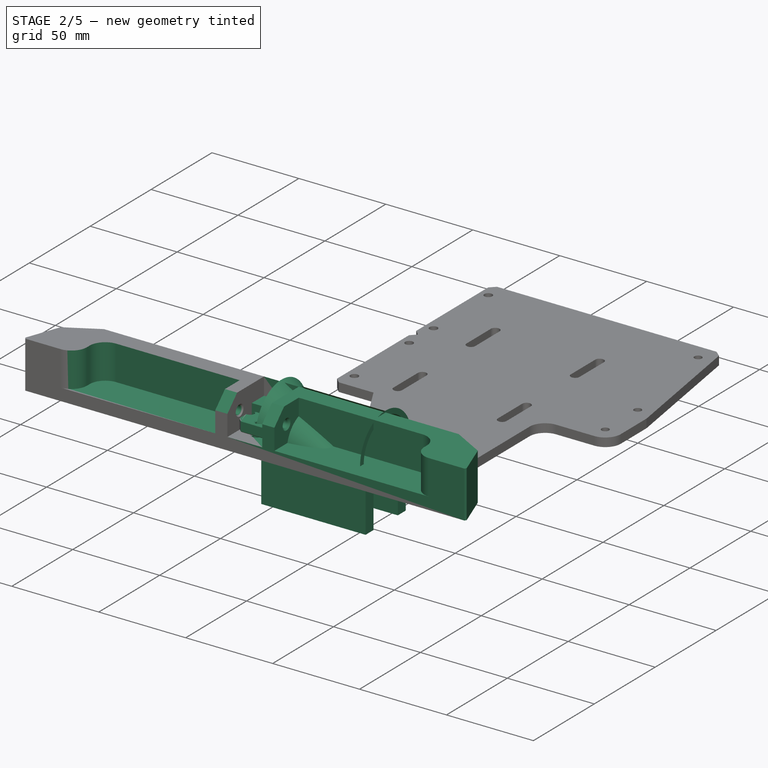
[diagram: stage 2 of 5 — iso view after this stage's code; geometry added in this stage tinted green]
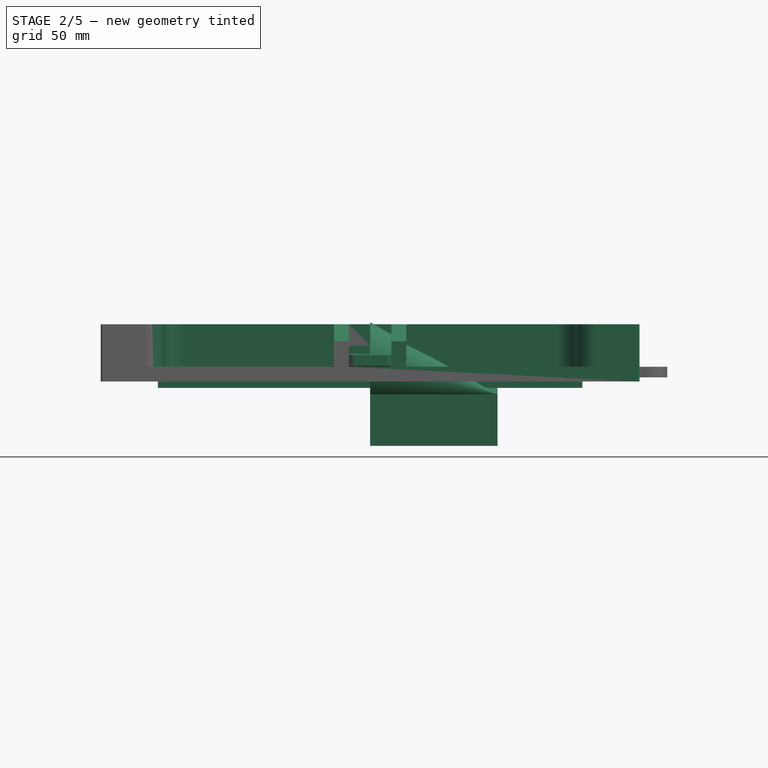
[diagram: stage 2 of 5 — front view after this stage's code; geometry added in this stage tinted green]
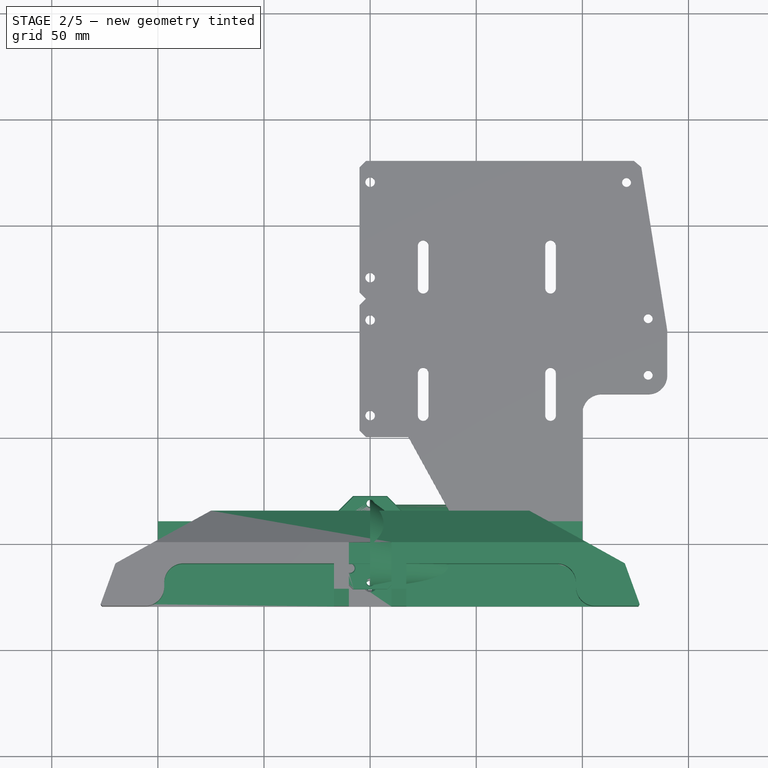
[diagram: stage 2 of 5 — top view after this stage's code; geometry added in this stage tinted green]
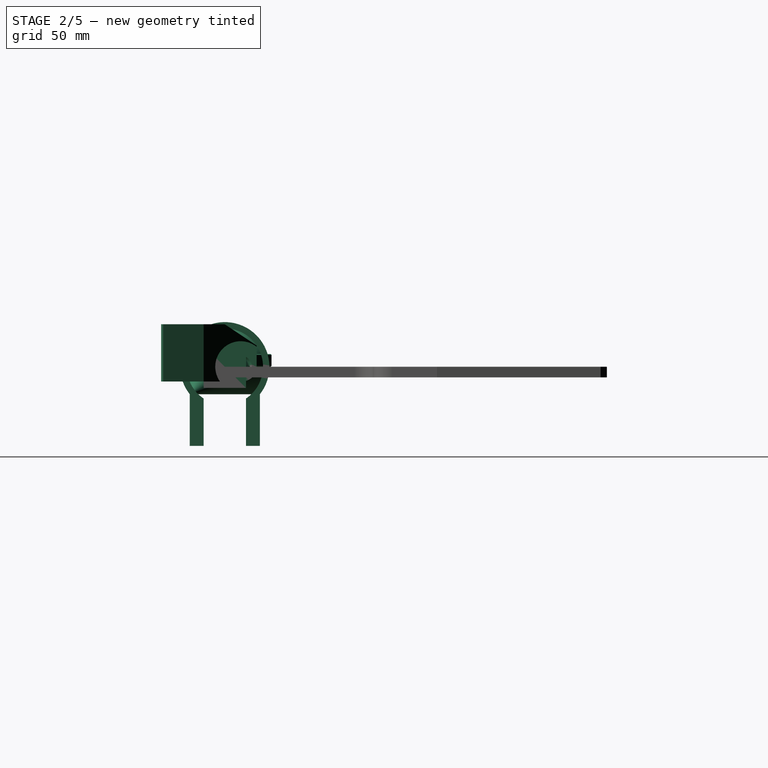
[diagram: stage 2 of 5 — right view after this stage's code; geometry added in this stage tinted green]
FEATURE [PartDesign::Body] Body004  label="Core-Wheel"
  AutoGroupSolids = false
  ClaimAllChildren = false
  ExportMode = 0
  FixShape = 1
  Group = -> [Sketch009,Pad006,Sketch012,Pad009,Mirrored001,Sketch013,Pocket003,Sketch015,Pad011,Sketch016,Sketch017,Pocket004,Pocket005,Sketch018,Pocket006]
  InvalidShape = false
  Origin = -> Origin004
  SingleSolid = true
  Tip = -> Pocket006
  TreeRank = 73
  ValidateShape = false
  _ExportChildren = -> [Pad006,Pad009,Mirrored001,Pocket003,Pad011,Pocket004,Pocket005,Pocket006]
  _GroupVersion = 1
FEATURE [App::Part] Part  label="EnsembleRoue"
  ClaimAllChildren = false
  ExportMode = 1
  Group = -> [Body003,Body004,Body005,Body006,Link]
  Origin = -> Origin005
  Placement = pos=(-145,0,0) rot=(0,0,1;0rad)
  TreeRank = 78
  _ExportChildren = -> [Body003,Body004,Body005,Body006,Link]
  _GroupVersion = 1
FEATURE [Sketcher::SketchObject] Sketch019
  ArcFitTolerance = 1e-06
  AttachmentSupport = -> [YZ_Plane008]
  ExternalBSplineMaxDegree = 5
  ExternalBSplineTolerance = 0.0001
  FullyConstrained = true
  InternalTolerance = 1e-06
  InvalidShape = false
  MakeInternals = false
  MapMode = 5
  Placement = pos=(0,0,0) rot=(0.57735,0.57735,0.57735;2.0944rad)
  Support = -> [YZ_Plane008]
  TreeRank = 147
  ValidateShape = false
  sketch-geometry (17):
    g0: Circle [constr] CenterX=0 CenterY=0 CenterZ=0 NormalX=0 NormalY=0 NormalZ=1 AngleXU=0 Radius=18
    g1: Circle [constr] CenterX=0 CenterY=0 CenterZ=0 NormalX=0 NormalY=0 NormalZ=1 AngleXU=0 Radius=14
    g2: LineSegment [constr] StartX=-10 StartY=-17.3 StartZ=0 EndX=-10 EndY=-37.3 EndZ=0
    g3: LineSegment [constr] StartX=-10 StartY=-37.3 StartZ=0 EndX=10 EndY=-37.3 EndZ=0
    g4: LineSegment [constr] StartX=10 StartY=-37.3 StartZ=0 EndX=10 EndY=-17.3 EndZ=0
    g5: LineSegment [constr] StartX=10 StartY=-17.3 StartZ=0 EndX=-10 EndY=-17.3 EndZ=0
    g6: GeomPoint [constr] X=0 Y=-27.3 Z=0
    g7: GeomPoint [constr] X=0 Y=18 Z=0
    g8: ArcOfCircle CenterX=0 CenterY=0 CenterZ=0 NormalX=0 NormalY=0 NormalZ=1 AngleXU=0 Radius=18 StartAngle=5.30142 EndAngle=10.4065
    g9: LineSegment StartX=-10 StartY=-14.9666 StartZ=0 EndX=-10 EndY=-37.3 EndZ=0
    g10: LineSegment StartX=10 StartY=-14.9666 StartZ=0 EndX=10 EndY=-37.3 EndZ=0
    g11: LineSegment StartX=-10 StartY=-37.3 StartZ=0 EndX=-16.5 EndY=-37.3 EndZ=0
    g12: LineSegment StartX=10 StartY=-37.3 StartZ=0 EndX=16.5 EndY=-37.3 EndZ=0
    g13: ArcOfCircle CenterX=0 CenterY=0 CenterZ=0 NormalX=0 NormalY=0 NormalZ=1 AngleXU=0 Radius=21 StartAngle=5.61624 EndAngle=10.0917
    g14: LineSegment StartX=16.5 StartY=-12.9904 StartZ=0 EndX=16.5 EndY=-37.3 EndZ=0
    g15: LineSegment StartX=-16.5 StartY=-12.9904 StartZ=0 EndX=-16.5 EndY=-37.3 EndZ=0
    g16: GeomPoint [constr] X=0 Y=21 Z=0
  constraints (42):
    c: Coincident(g0,g-1)
    c: Diameter(g0) = 36
    c: Coincident(g1,g0)
    c: Diameter(g1) = 28
    c: Coincident(g2,g3)
    c: Coincident(g3,g4)
    c: Coincident(g4,g5)
    c: Coincident(g5,g2)
    c: Horizontal(g3)
    c: Horizontal(g5)
    c: Vertical(g2)
    c: Vertical(g4)
    c: Symmetric(g3,g2,g6)
    c: PointOnObject(g6,g-2)
    c: Equal(g4,g5)
    c: DistanceY(g4,g4) = 20
    c: PointOnObject(g7,g0)
    c: PointOnObject(g7,g-2)
    c: DistanceY(g3,g7) = 55.3
    c: Coincident(g8,g0)
    c: PointOnObject(g8,g0)
    c: Coincident(g9,g8)
    c: Coincident(g9,g2)
    c: Vertical(g9)
    c: Coincident(g10,g8)
    c: Coincident(g10,g3)
    c: Vertical(g10)
    c: Coincident(g11,g9)
    c: Coincident(g12,g10)
    c: Symmetric(g12,g11,g-2)
    c: Horizontal(g12)
    c: Coincident(g13,g8)
    c: Coincident(g14,g13)
    c: Coincident(g14,g12)
    c: Vertical(g14)
    c: Coincident(g15,g13)
    c: Coincident(g15,g11)
    c: Vertical(g15)
    c: DistanceX(g10,g12) = 6.5
    c: PointOnObject(g16,g13)
    c: PointOnObject(g16,g-2)
    c: DistanceY(g7,g16) = 3
FEATURE [PartDesign::Pad] Pad012
  AddSubType = 0
  AlongSketchNormal = false
  AutoTaperInnerAngle = true
  CheckUpToFaceLimits = true
  ClaimChildren = false
  Direction = (1,-2e-16,3e-16)
  Fit = 0
  FitJoin = 0
  InnerFit = 0
  InnerFitJoin = 0
  InvalidShape = false
  Length = 60
  Length2 = 10
  Linearize = true
  NewSolid = false
  Profile = -> Sketch019
  ReferenceAxis = -> Sketch019 [N_Axis]
  Refine = true
  Suppress = false
  TaperInnerAngle = 0
  TaperInnerAngleRev = 0
  TreeRank = 148
  Type = 0
  ValidateShape = true
  _ProfileBasedVersion = 1
FEATURE [PartDesign::Body] Body008  label="Tsupport"
  AutoGroupSolids = false
  ClaimAllChildren = false
  ExportMode = 0
  Group = -> [Sketch022,Pad014,Sketch023,Pocket008,Sketch024,Pocket009,Sketch025,Pocket010,Sketch026,Pocket011,DatumPlane,Sketch027,Pocket012,Mirrored002,Chamfer005,Chamfer006]
  InvalidShape = false
  Origin = -> Origin010
  Placement = pos=(-2.1e-15,4e-16,-17.3) rot=(0.57735,0.57735,-0.57735;2.0944rad)
  Tip = -> Chamfer006
  TreeRank = 221
  ValidateShape = false
  _ExportChildren = -> [Pad014,Pocket008,Pocket009,Pocket010,Pocket011,DatumPlane,Pocket012,Mirrored002,Chamfer005,Chamfer006]
  _GroupVersion = 1
FEATURE [App::Part] Part002  label="RoueMoteur"
  ClaimAllChildren = false
  ExportMode = 1
  Group = -> [Part,Part001]
  Origin = -> Origin011
  TreeRank = 214
  _ExportChildren = -> [Part,Part001]
  _GroupVersion = 1
FEATURE [App::Link] Link001  label="Link001(RoueMoteur)"
  AutoLinkLabel = true
  AutoPlacement = true
  LinkPlacement = pos=(0,0,0) rot=(0,0,1;3.14159rad)
  LinkedObject = -> Part002
  Placement = pos=(0,0,0) rot=(0,0,1;3.14159rad)
  SyncGroupVisibility = false
  TreeRank = 222
  _LinkVersion = 1
FEATURE [Sketcher::SketchObject] Sketch028
  ArcFitTolerance = 1e-06
  AttachmentSupport = -> [YZ_Plane011]
  ExternalBSplineMaxDegree = 5
  ExternalBSplineTolerance = 0.0001
  FullyConstrained = true
  InternalTolerance = 1e-06
  InvalidShape = false
  MakeInternals = false
  MapMode = 5
  Placement = pos=(0,0,0) rot=(0.57735,0.57735,0.57735;2.0944rad)
  Support = -> [YZ_Plane011]
  TreeRank = 233
  ValidateShape = false
  sketch-geometry (5):
    g0: LineSegment StartX=-10 StartY=10 StartZ=0 EndX=-10 EndY=-10 EndZ=0
    g1: LineSegment StartX=-10 StartY=-10 StartZ=0 EndX=10 EndY=-10 EndZ=0
    g2: LineSegment StartX=10 StartY=-10 StartZ=0 EndX=10 EndY=10 EndZ=0
    g3: LineSegment StartX=10 StartY=10 StartZ=0 EndX=-10 EndY=10 EndZ=0
    g4: GeomPoint [constr] X=-1e-16 Y=2e-16 Z=0
  constraints (12):
    c: Coincident(g0,g1)
    c: Coincident(g1,g2)
    c: Coincident(g2,g3)
    c: Coincident(g3,g0)
    c: Horizontal(g1)
    c: Horizontal(g3)
    c: Vertical(g0)
    c: Vertical(g2)
    c: Symmetric(g1,g0,g4)
    c: Coincident(g4,g-1)
    c: Equal(g2,g3)
    c: DistanceX(g3,g3) = 20
FEATURE [PartDesign::Pad] Pad015
  AddSubType = 0
  AlongSketchNormal = false
  AutoTaperInnerAngle = true
  CheckUpToFaceLimits = true
  ClaimChildren = false
  Direction = (1,-2e-16,3e-16)
  Fit = 0
  FitJoin = 0
  InnerFit = 0
  InnerFitJoin = 0
  InvalidShape = false
  Length = 200
  Length2 = 10
  Linearize = true
  Midplane = true
  NewSolid = false
  Profile = -> Sketch028
  ReferenceAxis = -> Sketch028 [N_Axis]
  Refine = true
  Suppress = false
  TaperInnerAngle = 0
  TaperInnerAngleRev = 0
  TreeRank = 234
  Type = 0
  ValidateShape = true
  _ProfileBasedVersion = 1
FEATURE [PartDesign::Body] Body009  label="2020"
  AutoGroupSolids = false
  ClaimAllChildren = false
  ExportMode = 0
  Group = -> [Sketch028,Pad015]
  InvalidShape = false
  Origin = -> Origin012
  Placement = pos=(0,0,-27.3) rot=(0,0,1;0rad)
  Tip = -> Pad015
  TreeRank = 232
  ValidateShape = false
  _ExportChildren = -> [Pad015]
  _GroupVersion = 1
FEATURE [App::Link] Link002  label="Link002(2020)"
  AutoLinkLabel = true
  AutoPlacement = true
  LinkPlacement = pos=(2.6226e-05,110,-27.3) rot=(0,0,-1;1.5708rad)
  LinkedObject = -> Body009
  Placement = pos=(2.6226e-05,110,-27.3) rot=(0,0,-1;1.5708rad)
  SyncGroupVisibility = false
  TreeRank = 235
  _LinkVersion = 1
FEATURE [Sketcher::SketchObject] Sketch030
  ArcFitTolerance = 1e-06
  AttachmentSupport = -> [XY_Plane013]
  ExternalBSplineMaxDegree = 5
  ExternalBSplineTolerance = 0.0001
  FullyConstrained = true
  InternalTolerance = 1e-06
  InvalidShape = false
  MakeInternals = false
  MapMode = 5
  Support = -> [XY_Plane013]
  TreeRank = 257
  ValidateShape = false
  sketch-geometry (21):
    g0: LineSegment StartX=-15 StartY=-22 StartZ=0 EndX=-15 EndY=22 EndZ=0
    g1: LineSegment StartX=-15 StartY=22 StartZ=0 EndX=15 EndY=22 EndZ=0
    g2: LineSegment StartX=15 StartY=22 StartZ=0 EndX=15 EndY=-22 EndZ=0
    g3: LineSegment StartX=15 StartY=-22 StartZ=0 EndX=-15 EndY=-22 EndZ=0
    g4: GeomPoint [constr] X=0 Y=0 Z=0
    g5: LineSegment [constr] StartX=-9.5 StartY=-12 StartZ=0 EndX=-9.5 EndY=12 EndZ=0
    g6: LineSegment [constr] StartX=-9.5 StartY=12 StartZ=0 EndX=9.5 EndY=12 EndZ=0
    g7: LineSegment [constr] StartX=9.5 StartY=12 StartZ=0 EndX=9.5 EndY=-12 EndZ=0
    g8: LineSegment [constr] StartX=9.5 StartY=-12 StartZ=0 EndX=-9.5 EndY=-12 EndZ=0
    g9: GeomPoint [constr] X=0 Y=0 Z=0
    g10: Circle CenterX=9.5 CenterY=12 CenterZ=0 NormalX=0 NormalY=0 NormalZ=1 AngleXU=0 Radius=2.2
    g11: Circle CenterX=-9.5 CenterY=12 CenterZ=0 NormalX=0 NormalY=0 NormalZ=1 AngleXU=0 Radius=2.2
    g12: Circle CenterX=-9.5 CenterY=-12 CenterZ=0 NormalX=0 NormalY=0 NormalZ=1 AngleXU=0 Radius=2.2
    g13: Circle CenterX=9.5 CenterY=-12 CenterZ=0 NormalX=0 NormalY=0 NormalZ=1 AngleXU=0 Radius=2.2
    g14: Circle CenterX=0 CenterY=18.5 CenterZ=0 NormalX=0 NormalY=0 NormalZ=1 AngleXU=0 Radius=1.7
    g15: Circle CenterX=0 CenterY=-18.5 CenterZ=0 NormalX=0 NormalY=0 NormalZ=1 AngleXU=0 Radius=1.7
    g16: LineSegment [constr] StartX=-15 StartY=15 StartZ=0 EndX=-15 EndY=-15 EndZ=0
    g17: LineSegment [constr] StartX=-15 StartY=-15 StartZ=0 EndX=15 EndY=-15 EndZ=0
    g18: LineSegment [constr] StartX=15 StartY=-15 StartZ=0 EndX=15 EndY=15 EndZ=0
    g19: LineSegment [constr] StartX=15 StartY=15 StartZ=0 EndX=-15 EndY=15 EndZ=0
    g20: GeomPoint [constr] X=0 Y=0 Z=0
  constraints (49):
    c: Coincident(g0,g1)
    c: Coincident(g1,g2)
    c: Coincident(g2,g3)
    c: Coincident(g3,g0)
    c: Horizontal(g1)
    c: Horizontal(g3)
    c: Vertical(g0)
    c: Vertical(g2)
    c: Symmetric(g1,g0,g4)
    c: Coincident(g4,g-1)
    c: DistanceX(g1,g1) = 30
    c: Coincident(g5,g6)
    c: Coincident(g6,g7)
    c: Coincident(g7,g8)
    c: Coincident(g8,g5)
    c: Horizontal(g6)
    c: Horizontal(g8)
    c: Vertical(g5)
    c: Vertical(g7)
    c: Symmetric(g6,g5,g9)
    c: Coincident(g9,g4)
    c: DistanceX(g6,g6) = 19
    c: DistanceY(g7,g7) = 24
    c: Coincident(g10,g6)
    c: Coincident(g11,g5)
    c: Coincident(g12,g5)
    c: Coincident(g13,g7)
    c: Equal(g13,g12)
    c: Equal(g12,g11)
    c: Equal(g11,g10)
    c: Diameter(g10) = 4.4
    c: DistanceY(g2,g2) = 44
    c: PointOnObject(g14,g-2)
    c: Equal(g15,g14)
    c: Diameter(g14) = 3.4
    c: Symmetric(g14,g15,g4)
    c: Coincident(g16,g17)
    c: Coincident(g17,g18)
    c: Coincident(g18,g19)
    c: Coincident(g19,g16)
    c: Horizontal(g17)
    c: Horizontal(g19)
    c: Vertical(g16)
    c: Vertical(g18)
    c: Symmetric(g17,g16,g20)
    c: Coincident(g20,g4)
    c: PointOnObject(g17,g2)
    c: DistanceY(g17,g18) = 30
    c: DistanceY(g15,g14) = 37
FEATURE [PartDesign::Pad] Pad016
  AddSubType = 0
  AlongSketchNormal = false
  AutoTaperInnerAngle = true
  CheckUpToFaceLimits = true
  ClaimChildren = false
  Direction = (0,0,1)
  Fit = 0
  FitJoin = 0
  InnerFit = 0
  InnerFitJoin = 0
  InvalidShape = false
  Length = 6
  Length2 = 10
  Linearize = true
  NewSolid = false
  Profile = -> Sketch030
  ReferenceAxis = -> Sketch030 [N_Axis]
  Refine = true
  Suppress = false
  TaperInnerAngle = 0
  TaperInnerAngleRev = 0
  TreeRank = 258
  Type = 0
  ValidateShape = true
  _ProfileBasedVersion = 1
FEATURE [PartDesign::Chamfer] Chamfer007
  AddSubType = 0
  Angle = 45
  Base = -> Pad016 [Edge5,Edge2,Edge1,Edge8]
  BaseFeature = -> Pad016
  ChamferType = 0
  FlipDirection = false
  InvalidShape = false
  NewSolid = false
  Refine = true
  Size = 7
  Size2 = 1
  SupportTransform = false
  Suppress = false
  TreeRank = 259
  UseAllEdges = false
  ValidateShape = true
FEATURE [PartDesign::Chamfer] Chamfer008
  AddSubType = 0
  Angle = 45
  Base = -> Chamfer007 [Face5,Face2]
  BaseFeature = -> Chamfer007
  ChamferType = 0
  FlipDirection = false
  InvalidShape = false
  NewSolid = false
  Refine = true
  Size = 0.4
  Size2 = 1
  SupportTransform = false
  Suppress = false
  TreeRank = 260
  UseAllEdges = false
  ValidateShape = true
FEATURE [PartDesign::Chamfer] Chamfer010
  AddSubType = 0
  Angle = 45
  Base = -> Chamfer009 [Edge32]
  BaseFeature = -> Chamfer009
  ChamferType = 0
  FlipDirection = false
  InvalidShape = false
  NewSolid = false
  Refine = true
  Size = 1
  Size2 = 1
  SupportTransform = false
  Suppress = false
  TreeRank = 282
  UseAllEdges = false
  ValidateShape = true
FEATURE [Sketcher::SketchObject] Sketch035
  ArcFitTolerance = 1e-06
  AttachmentSupport = -> [Chamfer010]
  ExternalBSplineMaxDegree = 5
  ExternalBSplineTolerance = 0.0001
  ExternalGeometry = -> [Chamfer010]
  FullyConstrained = true
  InternalTolerance = 1e-06
  InvalidShape = false
  MakeInternals = false
  MapMode = 5
  Placement = pos=(0,0,20) rot=(0,0,1;0rad)
  Support = -> [Chamfer010]
  TreeRank = 283
  ValidateShape = false
  sketch-geometry (4):
    g0: LineSegment StartX=-17 StartY=-30 StartZ=0 EndX=-97 EndY=-30 EndZ=0
    g1: LineSegment StartX=-97 StartY=-30 StartZ=0 EndX=-97 EndY=-10 EndZ=0
    g2: LineSegment StartX=-97 StartY=-10 StartZ=0 EndX=-17 EndY=-10 EndZ=0
    g3: LineSegment StartX=-17 StartY=-10 StartZ=0 EndX=-17 EndY=-30 EndZ=0
  constraints (12):
    c: Coincident(g0,g1)
    c: Coincident(g1,g2)
    c: Coincident(g2,g3)
    c: Coincident(g3,g0)
    c: Horizontal(g0)
    c: Horizontal(g2)
    c: Vertical(g1)
    c: Vertical(g3)
    c: PointOnObject(g0,g-3)
    c: DistanceX(g0,g-3) = 7
    c: DistanceY(g3,g3) = 20
    c: DistanceX(g0,g0) = 80
FEATURE [PartDesign::Pocket] Pocket016
  AddSubType = 1
  AlongSketchNormal = false
  AutoTaperInnerAngle = true
  BaseFeature = -> Chamfer010
  CheckUpToFaceLimits = true
  ClaimChildren = false
  Direction = (0,0,-1)
  Fit = 0
  FitJoin = 0
  InnerFit = 0
  InnerFitJoin = 0
  InvalidShape = false
  Length = 20
  Length2 = 10
  Linearize = true
  NewSolid = false
  Profile = -> Sketch035
  ReferenceAxis = -> Sketch035 [N_Axis]
  Refine = true
  Suppress = false
  TaperInnerAngle = 0
  TaperInnerAngleRev = 0
  TreeRank = 284
  Type = 0
  ValidateShape = true
  _ProfileBasedVersion = 1
  _Version = 1
FEATURE [Sketcher::SketchObject] Sketch036
  ArcFitTolerance = 1e-06
  AttachmentSupport = -> [Pocket016]
  ExternalBSplineMaxDegree = 5
  ExternalBSplineTolerance = 0.0001
  ExternalGeometry = -> [Pocket016]
  FullyConstrained = true
  InternalTolerance = 1e-06
  InvalidShape = false
  MakeInternals = false
  MapMode = 5
  Placement = pos=(-17,0,0) rot=(0.57735,-0.57735,-0.57735;2.0944rad)
  Support = -> [Pocket016]
  TreeRank = 285
  ValidateShape = false
  sketch-geometry (1):
    g0: Circle CenterX=20 CenterY=10 CenterZ=0 NormalX=0 NormalY=0 NormalZ=1 AngleXU=0 Radius=2.2
  constraints (2):
    c: Diameter(g0) = 4.4
    c: Symmetric(g-4,g-3,g0)
FEATURE [PartDesign::Pocket] Pocket017
  AddSubType = 1
  AlongSketchNormal = false
  AutoTaperInnerAngle = true
  BaseFeature = -> Pocket016
  CheckUpToFaceLimits = true
  ClaimChildren = false
  Direction = (1,0,0)
  Fit = 0
  FitJoin = 0
  InnerFit = 0
  InnerFitJoin = 0
  InvalidShape = false
  Length = 10
  Length2 = 10
  Linearize = true
  NewSolid = false
  Profile = -> Sketch036
  ReferenceAxis = -> Sketch036 [N_Axis]
  Refine = true
  Suppress = false
  TaperInnerAngle = 0
  TaperInnerAngleRev = 0
  TreeRank = 286
  Type = 0
  ValidateShape = true
  _ProfileBasedVersion = 1
  _Version = 1
FEATURE [PartDesign::Fillet] Fillet004
  AddSubType = 0
  Base = -> Pocket017 [Edge42,Edge11]
  BaseFeature = -> Pocket017
  InvalidShape = false
  NewSolid = false
  Radius = 9
  Refine = true
  SupportTransform = false
  Suppress = false
  TreeRank = 287
  UseAllEdges = false
  ValidateShape = true
FEATURE [PartDesign::Mirrored] Mirrored003
  AddSubType = 0
  BaseFeature = -> Fillet004
  CopyShape = false
  InvalidShape = false
  MirrorPlane = -> YZ_Plane014
  NewSolid = false
  OriginalSubs = -> [Pad017,Pocket013,Pocket014,Pocket015,Fillet003,Chamfer009,Chamfer010,Pocket016,Pocket017,Fillet004]
  Originals = -> [Pad017,Pocket013,Pocket014,Pocket015,Fillet003,Chamfer009,Chamfer010,Pocket016,Pocket017,Fillet004]
  ParallelTransform = true
  Refine = true
  SubTransform = true
  Suppress = false
  TreeRank = 288
  ValidateShape = true
  _Version = 3
FEATURE [PartDesign::Chamfer] Chamfer011
  AddSubType = 0
  Angle = 45
  Base = -> Mirrored003 [Edge12,Edge52]
  BaseFeature = -> Mirrored003
  ChamferType = 0
  FlipDirection = false
  InvalidShape = false
  NewSolid = false
  Refine = true
  Size = 8
  Size2 = 1
  SupportTransform = false
  Suppress = false
  TreeRank = 289
  UseAllEdges = false
  ValidateShape = true
FEATURE [Sketcher::SketchObject] Sketch037
  ArcFitTolerance = 1e-06
  AttachmentSupport = -> [Chamfer011]
  ExternalBSplineMaxDegree = 5
  ExternalBSplineTolerance = 0.0001
  ExternalGeometry = -> [Chamfer011]
  FullyConstrained = true
  InternalTolerance = 1e-06
  InvalidShape = false
  MakeInternals = false
  MapMode = 5
  Placement = pos=(0,0,-7) rot=(1,0,0;3.14159rad)
  Support = -> [Chamfer011]
  TreeRank = 290
  ValidateShape = false
  sketch-geometry (1):
    g0: Circle CenterX=0 CenterY=20 CenterZ=0 NormalX=0 NormalY=0 NormalZ=1 AngleXU=0 Radius=2.2
  constraints (3):
    c: PointOnObject(g0,g-2)
    c: Diameter(g0) = 4.4
    c: DistanceY(g0,g-3) = 10
FEATURE [PartDesign::Pocket] Pocket018
  AddSubType = 1
  AlongSketchNormal = false
  AutoTaperInnerAngle = true
  BaseFeature = -> Chamfer011
  CheckUpToFaceLimits = true
  ClaimChildren = false
  Direction = (0,0,1)
  Fit = 0
  FitJoin = 0
  InnerFit = 0
  InnerFitJoin = 0
  InvalidShape = false
  Length = 5
  Length2 = 10
  Linearize = true
  NewSolid = false
  Profile = -> Sketch037
  ReferenceAxis = -> Sketch037 [N_Axis]
  Refine = true
  Suppress = false
  TaperInnerAngle = 0
  TaperInnerAngleRev = 0
  TreeRank = 291
  Type = 1
  ValidateShape = true
  _ProfileBasedVersion = 1
  _Version = 1
FEATURE [PartDesign::Chamfer] Chamfer012
  AddSubType = 0
  Angle = 45
  Base = -> Pocket018 [Edge89,Edge95,Edge59,Edge84,Edge25,Edge17,Edge103,Edge105]
  BaseFeature = -> Pocket018
  ChamferType = 0
  FlipDirection = false
  InvalidShape = false
  NewSolid = false
  Refine = true
  Size = 1
  Size2 = 1
  SupportTransform = false
  Suppress = false
  TreeRank = 292
  UseAllEdges = false
  ValidateShape = true
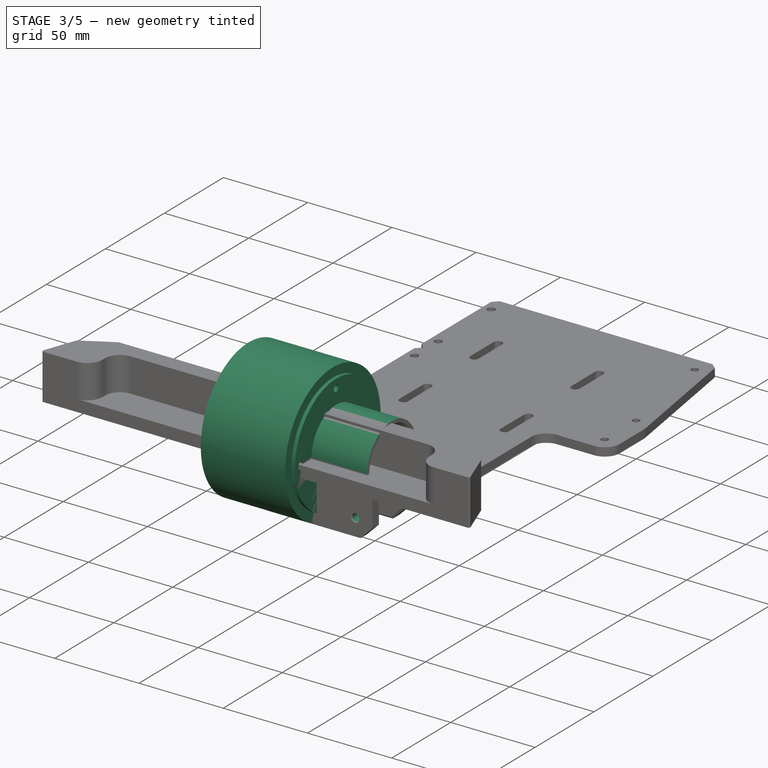
[diagram: stage 3 of 5 — iso view after this stage's code; geometry added in this stage tinted green]
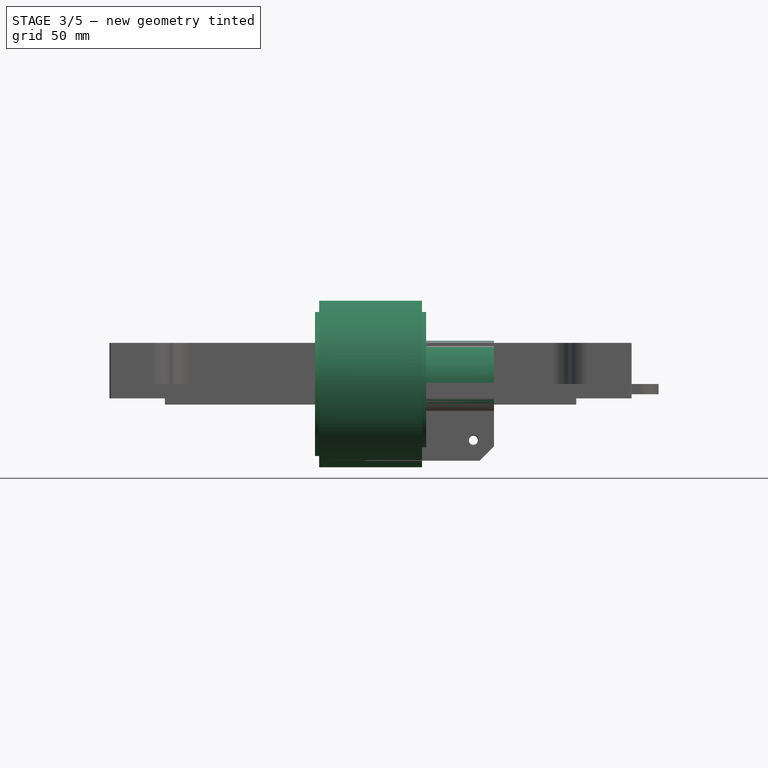
[diagram: stage 3 of 5 — front view after this stage's code; geometry added in this stage tinted green]
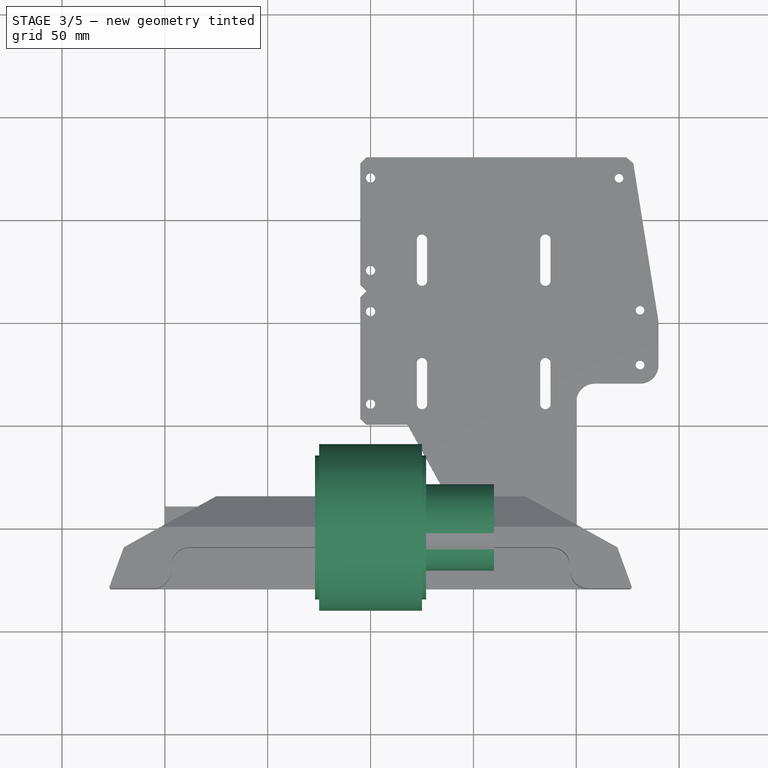
[diagram: stage 3 of 5 — top view after this stage's code; geometry added in this stage tinted green]
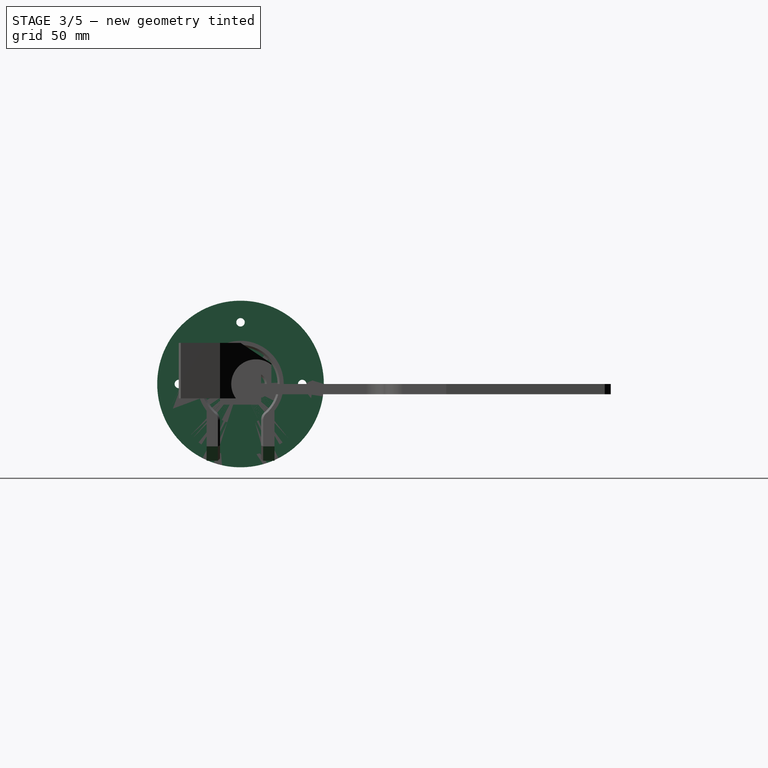
[diagram: stage 3 of 5 — right view after this stage's code; geometry added in this stage tinted green]
FEATURE [PartDesign::Body] Body003  label="InsertTPU-Pneu"
  AutoGroupSolids = false
  ClaimAllChildren = false
  ExportMode = 0
  FixShape = 1
  Group = -> [Sketch008,Pad005,Fillet,Chamfer]
  InvalidShape = false
  Origin = -> Origin003
  SingleSolid = true
  Tip = -> Chamfer
  TreeRank = 59
  ValidateShape = false
  _ExportChildren = -> [Pad005,Fillet,Chamfer]
  _GroupVersion = 1
FEATURE [Sketcher::SketchObject] Sketch009
  ArcFitTolerance = 1e-06
  AttachmentSupport = -> [YZ_Plane004]
  ExternalBSplineMaxDegree = 5
  ExternalBSplineTolerance = 0.0001
  FixShape = 1
  FullyConstrained = true
  InternalTolerance = 1e-06
  InvalidShape = false
  MakeInternals = false
  MapMode = 5
  Placement = pos=(0,0,0) rot=(0.57735,0.57735,0.57735;2.0944rad)
  Support = -> [YZ_Plane004]
  TreeRank = 74
  ValidateShape = false
  sketch-geometry (1):
    g0: Circle CenterX=0 CenterY=0 CenterZ=0 NormalX=0 NormalY=0 NormalZ=1 AngleXU=0 Radius=40.5
  constraints (2):
    c: Coincident(g0,g-1)
    c: Diameter(g0) = 81
FEATURE [PartDesign::Pad] Pad006
  AddSubType = 0
  AlongSketchNormal = false
  AutoTaperInnerAngle = true
  CheckUpToFaceLimits = true
  ClaimChildren = false
  Direction = (1,-2e-16,3e-16)
  Fit = 0
  FitJoin = 0
  FixShape = 1
  InnerFit = 0
  InnerFitJoin = 0
  InvalidShape = false
  Length = 50
  Length2 = 10
  Linearize = true
  Midplane = true
  NewSolid = false
  Profile = -> Sketch009
  ReferenceAxis = -> Sketch009 [N_Axis]
  Refine = true
  Suppress = false
  TaperInnerAngle = 0
  TaperInnerAngleRev = 0
  TreeRank = 75
  Type = 0
  ValidateShape = false
  _ProfileBasedVersion = 1
FEATURE [PartDesign::Body] Body005  label="Pneu"
  AutoGroupSolids = false
  ClaimAllChildren = false
  ExportMode = 0
  FixShape = 1
  Group = -> [Sketch010,Pad007,Sketch011,Pad008,Mirrored,Fillet001]
  InvalidShape = false
  Origin = -> Origin006
  SingleSolid = true
  Tip = -> Fillet001
  TreeRank = 88
  ValidateShape = false
  _ExportChildren = -> [Pad007,Pad008,Mirrored,Fillet001]
  _GroupVersion = 1
FEATURE [Sketcher::SketchObject] Sketch012
  ArcFitTolerance = 1e-06
  AttachmentSupport = -> [Pad006]
  ExternalBSplineMaxDegree = 5
  ExternalBSplineTolerance = 0.0001
  FixShape = 1
  FullyConstrained = true
  InternalTolerance = 1e-06
  InvalidShape = false
  MakeInternals = false
  MapMode = 5
  Placement = pos=(25,0,5.6e-15) rot=(0.57735,0.57735,0.57735;2.0944rad)
  Support = -> [Pad006]
  TreeRank = 95
  ValidateShape = false
  sketch-geometry (1):
    g0: Circle CenterX=0 CenterY=0 CenterZ=0 NormalX=0 NormalY=0 NormalZ=1 AngleXU=0 Radius=35
  constraints (2):
    c: Coincident(g0,g-1)
    c: Diameter(g0) = 70
FEATURE [PartDesign::Pad] Pad009
  AddSubType = 0
  AlongSketchNormal = false
  AutoTaperInnerAngle = true
  BaseFeature = -> Pad006
  CheckUpToFaceLimits = true
  ClaimChildren = false
  Direction = (1,1e-16,1e-16)
  Fit = 0
  FitJoin = 0
  FixShape = 1
  InnerFit = 0
  InnerFitJoin = 0
  InvalidShape = false
  Length = 2
  Length2 = 10
  Linearize = true
  NewSolid = false
  Profile = -> Sketch012
  ReferenceAxis = -> Sketch012 [N_Axis]
  Refine = true
  Suppress = false
  TaperInnerAngle = 0
  TaperInnerAngleRev = 0
  TreeRank = 96
  Type = 0
  ValidateShape = false
  _ProfileBasedVersion = 1
FEATURE [PartDesign::Mirrored] Mirrored001
  AddSubType = 0
  BaseFeature = -> Pad009
  CopyShape = false
  FixShape = 1
  InvalidShape = false
  MirrorPlane = -> YZ_Plane004
  NewSolid = false
  OriginalSubs = -> [Pad009]
  Originals = -> [Pad009]
  ParallelTransform = true
  Refine = true
  SubTransform = true
  Suppress = false
  TreeRank = 97
  ValidateShape = false
  _Version = 3
FEATURE [Sketcher::SketchObject] Sketch013
  ArcFitTolerance = 1e-06
  AttachmentSupport = -> [Mirrored001]
  ExternalBSplineMaxDegree = 5
  ExternalBSplineTolerance = 0.0001
  FixShape = 1
  FullyConstrained = true
  InternalTolerance = 1e-06
  InvalidShape = false
  MakeInternals = false
  MapMode = 5
  Placement = pos=(27,0,0) rot=(0.57735,0.57735,0.57735;2.0944rad)
  Support = -> [Mirrored001]
  TreeRank = 98
  ValidateShape = false
  sketch-geometry (5):
    g0: Circle CenterX=0 CenterY=30 CenterZ=0 NormalX=0 NormalY=0 NormalZ=1 AngleXU=0 Radius=2.05
    g1: Circle CenterX=-30 CenterY=0 CenterZ=0 NormalX=0 NormalY=0 NormalZ=1 AngleXU=0 Radius=2.05
    g2: Circle CenterX=0 CenterY=-30 CenterZ=0 NormalX=0 NormalY=0 NormalZ=1 AngleXU=0 Radius=2.05
    g3: Circle CenterX=30 CenterY=0 CenterZ=0 NormalX=0 NormalY=0 NormalZ=1 AngleXU=0 Radius=2.05
    g4: Circle [constr] CenterX=0 CenterY=0 CenterZ=0 NormalX=0 NormalY=0 NormalZ=1 AngleXU=0 Radius=30
  constraints (14):
    c: PointOnObject(g0,g-2)
    c: PointOnObject(g1,g-1)
    c: PointOnObject(g2,g-2)
    c: PointOnObject(g3,g-1)
    c: Coincident(g4,g-1)
    c: PointOnObject(g0,g4)
    c: PointOnObject(g1,g4)
    c: PointOnObject(g3,g4)
    c: PointOnObject(g2,g4)
    c: Equal(g3,g0)
    c: Equal(g3,g1)
    c: Equal(g3,g2)
    c: Diameter(g3) = 4.1
    c: Diameter(g4) = 60
FEATURE [PartDesign::Pocket] Pocket003
  AddSubType = 1
  AlongSketchNormal = false
  AutoTaperInnerAngle = true
  BaseFeature = -> Mirrored001
  CheckUpToFaceLimits = true
  ClaimChildren = false
  Direction = (-1,0,0)
  Fit = 0
  FitJoin = 0
  FixShape = 1
  InnerFit = 0
  InnerFitJoin = 0
  InvalidShape = false
  Length = 15
  Length2 = 10
  Linearize = true
  NewSolid = false
  Profile = -> Sketch013
  ReferenceAxis = -> Sketch013 [N_Axis]
  Refine = true
  Suppress = false
  TaperInnerAngle = 0
  TaperInnerAngleRev = 0
  TreeRank = 99
  Type = 1
  ValidateShape = false
  _ProfileBasedVersion = 1
  _Version = 1
FEATURE [PartDesign::Body] Body006  label="Flasque"
  AutoGroupSolids = false
  ClaimAllChildren = false
  ExportMode = 0
  FixShape = 1
  Group = -> [Sketch014,Import002,Pad010]
  InvalidShape = false
  Origin = -> Origin008
  Placement = pos=(27,0,0) rot=(0,0,1;0rad)
  SingleSolid = true
  Tip = -> Pad010
  TreeRank = 112
  ValidateShape = false
  _ExportChildren = -> [Import002,Pad010]
  _GroupVersion = 1
FEATURE [App::Link] Link  label="Link(Flasque)"
  AutoLinkLabel = true
  AutoPlacement = true
  LinkPlacement = pos=(-30,6.79493e-06,0) rot=(0,0,1;0rad)
  LinkedObject = -> Body006
  Placement = pos=(-30,6.79493e-06,0) rot=(0,0,1;0rad)
  SyncGroupVisibility = false
  TreeRank = 116
  _LinkVersion = 1
FEATURE [Sketcher::SketchObject] Sketch015
  ArcFitTolerance = 1e-06
  AttachmentSupport = -> [Pocket003]
  ExternalBSplineMaxDegree = 5
  ExternalBSplineTolerance = 0.0001
  FixShape = 1
  FullyConstrained = true
  InternalTolerance = 1e-06
  InvalidShape = false
  MakeInternals = false
  MapMode = 5
  Placement = pos=(27,0,0) rot=(0.57735,0.57735,0.57735;2.0944rad)
  Support = -> [Pocket003]
  TreeRank = 117
  ValidateShape = false
  sketch-geometry (3):
    g0: ArcOfCircle CenterX=0 CenterY=0 CenterZ=0 NormalX=0 NormalY=0 NormalZ=1 AngleXU=0 Radius=19.7231 StartAngle=2.88792 EndAngle=8.10766
    g1: LineSegment StartX=-19.0919 StartY=4.94975 StartZ=0 EndX=-4.94975 EndY=19.0919 EndZ=0
    g2: LineSegment [constr] StartX=0 StartY=0 StartZ=0 EndX=-12.0208 EndY=12.0208 EndZ=0
  constraints (8):
    c: Coincident(g0,g-1)
    c: Coincident(g1,g0)
    c: Coincident(g1,g0)
    c: Distance(g1) = 20
    c: Coincident(g2,g0)
    c: Symmetric(g0,g0,g2)
    c: Angle(g-2,g2) = 0.785398
    c: Distance(g2) = 17
FEATURE [PartDesign::Pad] Pad011
  AddSubType = 0
  AlongSketchNormal = false
  AutoTaperInnerAngle = true
  BaseFeature = -> Pocket003
  CheckUpToFaceLimits = true
  ClaimChildren = false
  Direction = (1,0,0)
  Fit = 0
  FitJoin = 0
  FixShape = 1
  InnerFit = 0
  InnerFitJoin = 0
  InvalidShape = false
  Length = 13
  Length2 = 10
  Linearize = true
  NewSolid = false
  Profile = -> Sketch015
  ReferenceAxis = -> Sketch015 [N_Axis]
  Refine = true
  Suppress = false
  TaperInnerAngle = 0
  TaperInnerAngleRev = 0
  TreeRank = 118
  Type = 0
  ValidateShape = false
  _ProfileBasedVersion = 1
FEATURE [Sketcher::SketchObject] Sketch016
  ArcFitTolerance = 1e-06
  AttachmentSupport = -> [Pad011]
  ExternalBSplineMaxDegree = 5
  ExternalBSplineTolerance = 0.0001
  ExternalGeometry = -> [Pad011]
  FixShape = 1
  FullyConstrained = true
  InternalTolerance = 1e-06
  InvalidShape = false
  MakeInternals = false
  MapMode = 5
  Placement = pos=(0,-12.0208,12.0208) rot=(1,0,0;0.785398rad)
  Support = -> [Pad011]
  TreeRank = 119
  ValidateShape = false
  sketch-geometry (2):
    g0: Circle CenterX=35 CenterY=0 CenterZ=0 NormalX=0 NormalY=0 NormalZ=1 AngleXU=0 Radius=2.1
    g1: Circle [constr] CenterX=35 CenterY=0 CenterZ=0 NormalX=0 NormalY=0 NormalZ=1 AngleXU=0 Radius=5
  constraints (5):
    c: PointOnObject(g0,g-1)
    c: Diameter(g0) = 4.2
    c: Coincident(g1,g0)
    c: Tangent(g1,g-3)
    c: Diameter(g1) = 10
FEATURE [Sketcher::SketchObject] Sketch017
  ArcFitTolerance = 1e-06
  AttachmentSupport = -> [Pad011]
  ExternalBSplineMaxDegree = 5
  ExternalBSplineTolerance = 0.0001
  FixShape = 1
  FullyConstrained = true
  InternalTolerance = 1e-06
  InvalidShape = false
  MakeInternals = false
  MapMode = 5
  Placement = pos=(40,0,0) rot=(0.57735,0.57735,0.57735;2.0944rad)
  Support = -> [Pad011]
  TreeRank = 120
  ValidateShape = false
  sketch-geometry (1):
    g0: Circle CenterX=0 CenterY=0 CenterZ=0 NormalX=0 NormalY=0 NormalZ=1 AngleXU=0 Radius=3
  constraints (2):
    c: Coincident(g0,g-1)
    c: Diameter(g0) = 6
FEATURE [PartDesign::Pocket] Pocket004
  AddSubType = 1
  AlongSketchNormal = false
  AutoTaperInnerAngle = true
  BaseFeature = -> Pad011
  CheckUpToFaceLimits = true
  ClaimChildren = false
  Direction = (-1,0,0)
  Fit = 0
  FitJoin = 0
  FixShape = 1
  InnerFit = 0
  InnerFitJoin = 0
  InvalidShape = false
  Length = 15
  Length2 = 10
  Linearize = true
  NewSolid = false
  Profile = -> Sketch017
  ReferenceAxis = -> Sketch017 [N_Axis]
  Refine = true
  Suppress = false
  TaperInnerAngle = 0
  TaperInnerAngleRev = 0
  TreeRank = 121
  Type = 1
  ValidateShape = false
  _ProfileBasedVersion = 1
  _Version = 1
FEATURE [PartDesign::Pocket] Pocket005
  AddSubType = 1
  AlongSketchNormal = false
  AutoTaperInnerAngle = true
  BaseFeature = -> Pocket004
  CheckUpToFaceLimits = true
  ClaimChildren = false
  Direction = (0,0.707107,-0.707107)
  Fit = 0
  FitJoin = 0
  FixShape = 1
  InnerFit = 0
  InnerFitJoin = 0
  InvalidShape = false
  Length = 17
  Length2 = 10
  Linearize = true
  NewSolid = false
  Profile = -> Sketch016
  ReferenceAxis = -> Sketch016 [N_Axis]
  Refine = true
  Suppress = false
  TaperInnerAngle = 0
  TaperInnerAngleRev = 0
  TreeRank = 122
  Type = 0
  ValidateShape = false
  _ProfileBasedVersion = 1
  _Version = 1
FEATURE [Sketcher::SketchObject] Sketch020
  ArcFitTolerance = 1e-06
  AttachmentSupport = -> [YZ_Plane008]
  ExternalBSplineMaxDegree = 5
  ExternalBSplineTolerance = 0.0001
  ExternalGeometry = -> [Pad012]
  FullyConstrained = true
  InternalTolerance = 1e-06
  InvalidShape = false
  MakeInternals = false
  MapMode = 5
  Placement = pos=(0,0,0) rot=(0.57735,0.57735,0.57735;2.0944rad)
  Support = -> [YZ_Plane008]
  TreeRank = 149
  ValidateShape = false
  sketch-geometry (12):
    g0: LineSegment StartX=16.5 StartY=-37.3 StartZ=0 EndX=-16.5 EndY=-37.3 EndZ=0
    g1: Circle CenterX=0 CenterY=0 CenterZ=0 NormalX=0 NormalY=0 NormalZ=1 AngleXU=0 Radius=11.25
    g2: Circle [constr] CenterX=0 CenterY=0 CenterZ=0 NormalX=0 NormalY=0 NormalZ=1 AngleXU=0 Radius=14
    g3: LineSegment [constr] StartX=9.89949 StartY=-9.89949 StartZ=0 EndX=9.89949 EndY=9.89949 EndZ=0
    g4: LineSegment [constr] StartX=9.89949 StartY=9.89949 StartZ=0 EndX=-9.89949 EndY=9.89949 EndZ=0
    g5: LineSegment [constr] StartX=-9.89949 StartY=9.89949 StartZ=0 EndX=-9.89949 EndY=-9.89949 EndZ=0
    g6: LineSegment [constr] StartX=-9.89949 StartY=-9.89949 StartZ=0 EndX=9.89949 EndY=-9.89949 EndZ=0
    g7: GeomPoint [constr] X=0 Y=0 Z=0
    g8: Circle CenterX=-9.89949 CenterY=9.89949 CenterZ=0 NormalX=0 NormalY=0 NormalZ=1 AngleXU=0 Radius=1.7
    g9: Circle CenterX=9.89949 CenterY=9.89949 CenterZ=0 NormalX=0 NormalY=0 NormalZ=1 AngleXU=0 Radius=1.7
    g10: Circle CenterX=9.89949 CenterY=-9.89949 CenterZ=0 NormalX=0 NormalY=0 NormalZ=1 AngleXU=0 Radius=1.7
    g11: Circle CenterX=-9.89949 CenterY=-9.89949 CenterZ=0 NormalX=0 NormalY=0 NormalZ=1 AngleXU=0 Radius=1.7
  constraints (26):
    c: Coincident(g0,g-5)
    c: Coincident(g0,g-4)
    c: Coincident(g1,g-3)
    c: Diameter(g1) = 22.5
    c: Coincident(g2,g1)
    c: Coincident(g3,g4)
    c: Coincident(g4,g5)
    c: Coincident(g5,g6)
    c: Coincident(g6,g3)
    c: Horizontal(g4)
    c: Horizontal(g6)
    c: Vertical(g3)
    c: Vertical(g5)
    c: Symmetric(g4,g3,g7)
    c: Coincident(g7,g1)
    c: PointOnObject(g4,g2)
    c: Equal(g4,g5)
    c: Diameter(g2) = 28
    c: Coincident(g8,g4)
    c: Coincident(g9,g3)
    c: Coincident(g10,g3)
    c: Coincident(g11,g5)
    c: Equal(g8,g9)
    c: Equal(g9,g10)
    c: Equal(g10,g11)
    c: Diameter(g8) = 3.4
FEATURE [PartDesign::Pad] Pad013
  AddSubType = 0
  AlongSketchNormal = false
  AutoTaperInnerAngle = true
  BaseFeature = -> Pad012
  CheckUpToFaceLimits = true
  ClaimChildren = false
  Direction = (1,-2e-16,3e-16)
  Fit = 0
  FitJoin = 0
  InnerFit = 0
  InnerFitJoin = 0
  InvalidShape = false
  Length = 3
  Length2 = 10
  Linearize = true
  NewSolid = false
  Profile = -> Sketch020
  ReferenceAxis = -> Sketch020 [N_Axis]
  Refine = true
  Reversed = true
  Suppress = false
  TaperInnerAngle = 0
  TaperInnerAngleRev = 0
  TreeRank = 150
  Type = 0
  ValidateShape = true
  _ProfileBasedVersion = 1
FEATURE [Sketcher::SketchObject] Sketch021
  ArcFitTolerance = 1e-06
  AttachmentSupport = -> [XZ_Plane008]
  ExternalBSplineMaxDegree = 5
  ExternalBSplineTolerance = 0.0001
  ExternalGeometry = -> [Pad013]
  FullyConstrained = true
  InternalTolerance = 1e-06
  InvalidShape = false
  MakeInternals = false
  MapMode = 5
  Placement = pos=(0,0,0) rot=(1,0,0;1.5708rad)
  Support = -> [XZ_Plane008]
  TreeRank = 151
  ValidateShape = false
  sketch-geometry (2):
    g0: Circle CenterX=10 CenterY=-27.3 CenterZ=0 NormalX=0 NormalY=0 NormalZ=1 AngleXU=0 Radius=2.15
    g1: Circle CenterX=50 CenterY=-27.3 CenterZ=0 NormalX=0 NormalY=0 NormalZ=1 AngleXU=0 Radius=2.15
  constraints (6):
    c: Equal(g1,g0)
    c: Diameter(g1) = 4.3
    c: Horizontal(g1,g0)
    c: DistanceY(g-3,g1) = 10
    c: DistanceX(g1,g-3) = 10
    c: DistanceX(g-3,g0) = 10
FEATURE [PartDesign::Pocket] Pocket007
  AddSubType = 1
  AlongSketchNormal = false
  AutoTaperInnerAngle = true
  BaseFeature = -> Pad013
  CheckUpToFaceLimits = true
  ClaimChildren = false
  Direction = (0,1,-2e-16)
  Fit = 0
  FitJoin = 0
  InnerFit = 0
  InnerFitJoin = 0
  InvalidShape = false
  Length = 5
  Length2 = 10
  Linearize = true
  Midplane = true
  NewSolid = false
  Profile = -> Sketch021
  ReferenceAxis = -> Sketch021 [N_Axis]
  Refine = true
  Suppress = false
  TaperInnerAngle = 0
  TaperInnerAngleRev = 0
  TreeRank = 152
  Type = 1
  ValidateShape = true
  _ProfileBasedVersion = 1
  _Version = 1
FEATURE [PartDesign::Chamfer] Chamfer001
  AddSubType = 0
  Angle = 45
  Base = -> Pocket007 [Edge2,Edge6]
  BaseFeature = -> Pocket007
  ChamferType = 0
  FlipDirection = false
  InvalidShape = false
  NewSolid = false
  Refine = true
  Size = 7
  Size2 = 1
  SupportTransform = false
  Suppress = false
  TreeRank = 153
  UseAllEdges = false
  ValidateShape = true
FEATURE [PartDesign::Chamfer] Chamfer002
  AddSubType = 0
  Angle = 45
  Base = -> Chamfer001 [Edge35,Edge28,Edge36,Edge27,Edge14,Edge22,Edge23,Edge13]
  BaseFeature = -> Chamfer001
  ChamferType = 0
  FlipDirection = false
  InvalidShape = false
  NewSolid = false
  Refine = true
  Size = 0.4
  Size2 = 1
  SupportTransform = false
  Suppress = false
  TreeRank = 154
  UseAllEdges = false
  ValidateShape = true
FEATURE [PartDesign::Chamfer] Chamfer003
  AddSubType = 0
  Angle = 45
  Base = -> Chamfer002 [Face7]
  BaseFeature = -> Chamfer002
  ChamferType = 0
  FlipDirection = false
  InvalidShape = false
  NewSolid = false
  Refine = true
  Size = 0.4
  Size2 = 1
  SupportTransform = false
  Suppress = false
  TreeRank = 155
  UseAllEdges = false
  ValidateShape = true
FEATURE [PartDesign::Fillet] Fillet002
  AddSubType = 0
  Base = -> Chamfer003 [Edge50,Edge47]
  BaseFeature = -> Chamfer003
  InvalidShape = false
  NewSolid = false
  Radius = 5
  Refine = true
  SupportTransform = false
  Suppress = false
  TreeRank = 156
  UseAllEdges = false
  ValidateShape = true
FEATURE [PartDesign::Chamfer] Chamfer004
  AddSubType = 0
  Angle = 45
  Base = -> Fillet002 [Edge4,Edge32,Edge34,Edge12,Edge14]
  BaseFeature = -> Fillet002
  ChamferType = 0
  FlipDirection = false
  InvalidShape = false
  NewSolid = false
  Refine = true
  Size = 1
  Size2 = 1
  SupportTransform = false
  Suppress = false
  TreeRank = 157
  UseAllEdges = false
  ValidateShape = true
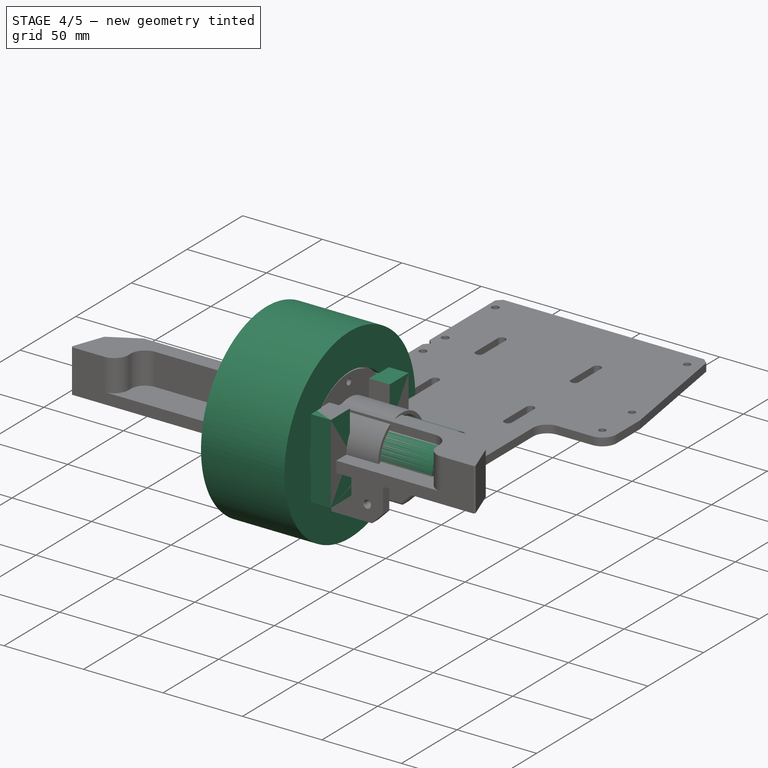
[diagram: stage 4 of 5 — iso view after this stage's code; geometry added in this stage tinted green]
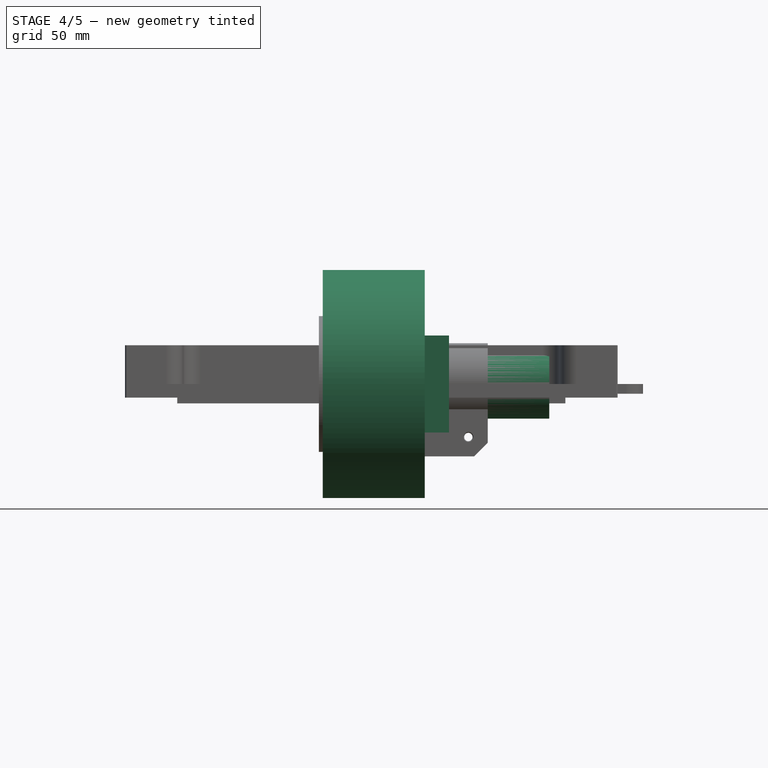
[diagram: stage 4 of 5 — front view after this stage's code; geometry added in this stage tinted green]
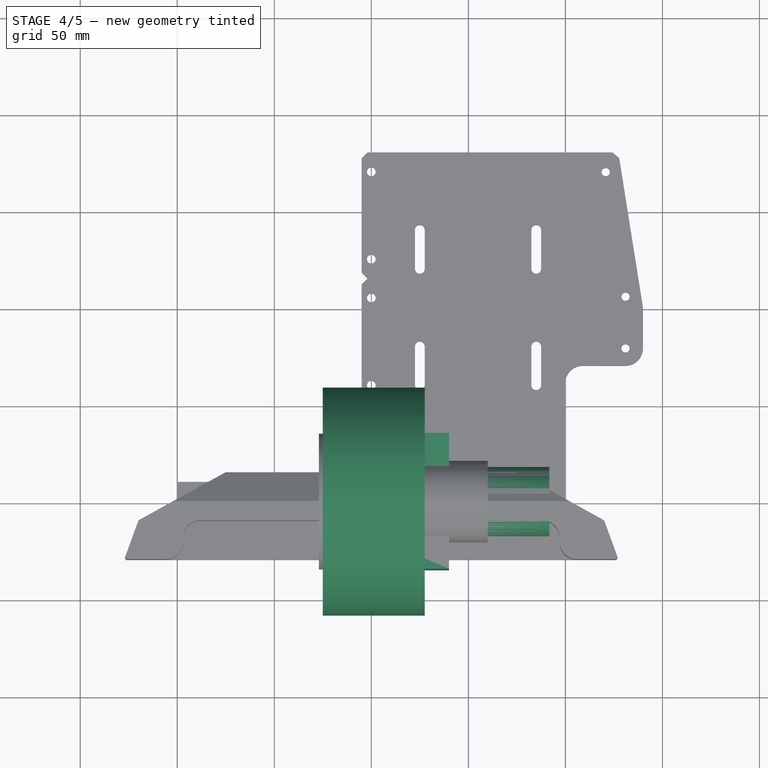
[diagram: stage 4 of 5 — top view after this stage's code; geometry added in this stage tinted green]
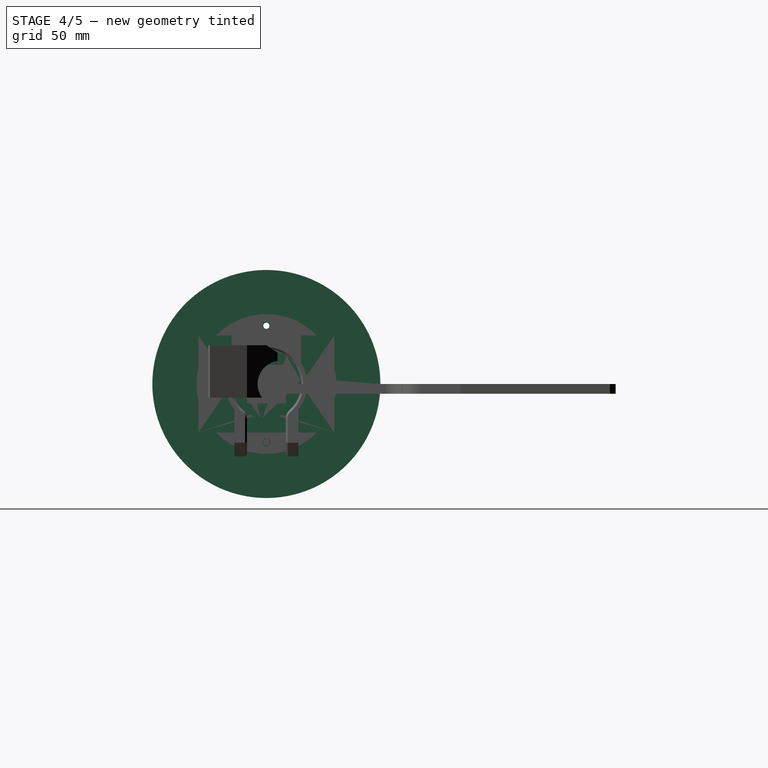
[diagram: stage 4 of 5 — right view after this stage's code; geometry added in this stage tinted green]
FEATURE [Sketcher::SketchObject] Sketch
  ArcFitTolerance = 1e-06
  AttachmentSupport = -> [YZ_Plane]
  ExternalBSplineMaxDegree = 5
  ExternalBSplineTolerance = 0.0001
  FixShape = 1
  FullyConstrained = true
  InternalTolerance = 1e-06
  InvalidShape = false
  MakeInternals = false
  MapMode = 5
  Placement = pos=(0,0,0) rot=(0.57735,0.57735,0.57735;2.0944rad)
  Support = -> [YZ_Plane]
  TreeRank = 11
  ValidateShape = false
  sketch-geometry (1):
    g0: Circle CenterX=0 CenterY=0 CenterZ=0 NormalX=0 NormalY=0 NormalZ=1 AngleXU=0 Radius=17.85
  constraints (2):
    c: Coincident(g0,g-1)
    c: Diameter(g0) = 35.7
FEATURE [PartDesign::Pad] Pad
  AddSubType = 0
  AlongSketchNormal = false
  AutoTaperInnerAngle = true
  CheckUpToFaceLimits = true
  ClaimChildren = false
  Direction = (1,-2e-16,3e-16)
  Fit = 0
  FitJoin = 0
  FixShape = 1
  InnerFit = 0
  InnerFitJoin = 0
  InvalidShape = false
  Length = 91.7
  Length2 = 10
  Linearize = true
  NewSolid = false
  Profile = -> Sketch
  ReferenceAxis = -> Sketch [N_Axis]
  Refine = true
  Suppress = false
  TaperInnerAngle = 0
  TaperInnerAngleRev = 0
  TreeRank = 12
  Type = 0
  ValidateShape = false
  _ProfileBasedVersion = 1
FEATURE [Sketcher::SketchObject] Sketch001
  ArcFitTolerance = 1e-06
  AttachmentSupport = -> [YZ_Plane]
  ExternalBSplineMaxDegree = 5
  ExternalBSplineTolerance = 0.0001
  FixShape = 1
  FullyConstrained = true
  InternalTolerance = 1e-06
  InvalidShape = false
  MakeInternals = false
  MapMode = 5
  Placement = pos=(0,0,0) rot=(0.57735,0.57735,0.57735;2.0944rad)
  Support = -> [YZ_Plane]
  TreeRank = 13
  ValidateShape = false
  sketch-geometry (1):
    g0: Circle CenterX=0 CenterY=0 CenterZ=0 NormalX=0 NormalY=0 NormalZ=1 AngleXU=0 Radius=11
  constraints (2):
    c: Coincident(g0,g-1)
    c: Diameter(g0) = 22
FEATURE [PartDesign::Pad] Pad001
  AddSubType = 0
  AlongSketchNormal = false
  AutoTaperInnerAngle = true
  BaseFeature = -> Pad
  CheckUpToFaceLimits = true
  ClaimChildren = false
  Direction = (1,-2e-16,3e-16)
  Fit = 0
  FitJoin = 0
  FixShape = 1
  InnerFit = 0
  InnerFitJoin = 0
  InvalidShape = false
  Length = 2
  Length2 = 10
  Linearize = true
  NewSolid = false
  Profile = -> Sketch001
  ReferenceAxis = -> Sketch001 [N_Axis]
  Refine = true
  Reversed = true
  Suppress = false
  TaperInnerAngle = 0
  TaperInnerAngleRev = 0
  TreeRank = 14
  Type = 0
  ValidateShape = false
  _ProfileBasedVersion = 1
FEATURE [Sketcher::SketchObject] Sketch002
  ArcFitTolerance = 1e-06
  AttachmentSupport = -> [Pad001]
  ExternalBSplineMaxDegree = 5
  ExternalBSplineTolerance = 0.0001
  FixShape = 1
  FullyConstrained = true
  InternalTolerance = 1e-06
  InvalidShape = false
  MakeInternals = false
  MapMode = 5
  Placement = pos=(-2,0,-4e-16) rot=(0.57735,-0.57735,-0.57735;2.0944rad)
  Support = -> [Pad001]
  TreeRank = 15
  ValidateShape = false
  sketch-geometry (1):
    g0: Circle CenterX=0 CenterY=0 CenterZ=0 NormalX=0 NormalY=0 NormalZ=1 AngleXU=0 Radius=3
  constraints (2):
    c: Coincident(g0,g-1)
    c: Diameter(g0) = 6
FEATURE [PartDesign::Pad] Pad002
  AddSubType = 0
  AlongSketchNormal = false
  AutoTaperInnerAngle = true
  BaseFeature = -> Pad001
  CheckUpToFaceLimits = true
  ClaimChildren = false
  Direction = (-1,1e-16,-1e-16)
  Fit = 0
  FitJoin = 0
  FixShape = 1
  InnerFit = 0
  InnerFitJoin = 0
  InvalidShape = false
  Length = 13.4
  Length2 = 10
  Linearize = true
  NewSolid = false
  Profile = -> Sketch002
  ReferenceAxis = -> Sketch002 [N_Axis]
  Refine = true
  Suppress = false
  TaperInnerAngle = 0
  TaperInnerAngleRev = 0
  TreeRank = 16
  Type = 0
  ValidateShape = false
  _ProfileBasedVersion = 1
FEATURE [Sketcher::SketchObject] Sketch003
  ArcFitTolerance = 1e-06
  AttachmentSupport = -> [YZ_Plane]
  ExternalBSplineMaxDegree = 5
  ExternalBSplineTolerance = 0.0001
  FixShape = 1
  FullyConstrained = true
  InternalTolerance = 1e-06
  InvalidShape = false
  MakeInternals = false
  MapMode = 5
  Placement = pos=(0,0,0) rot=(0.57735,0.57735,0.57735;2.0944rad)
  Support = -> [YZ_Plane]
  TreeRank = 17
  ValidateShape = false
  sketch-geometry (1):
    g0: Circle CenterX=0 CenterY=14 CenterZ=0 NormalX=0 NormalY=0 NormalZ=1 AngleXU=0 Radius=1.5
  constraints (3):
    c: PointOnObject(g0,g-2)
    c: Diameter(g0) = 3
    c: DistanceY(g-1,g0) = 14
FEATURE [PartDesign::Pocket] Pocket
  AddSubType = 1
  AlongSketchNormal = false
  AutoTaperInnerAngle = true
  BaseFeature = -> Pad002
  CheckUpToFaceLimits = true
  ClaimChildren = false
  Direction = (-1,2e-16,-3e-16)
  Fit = 0
  FitJoin = 0
  FixShape = 1
  InnerFit = 0
  InnerFitJoin = 0
  InvalidShape = false
  Length = 10
  Length2 = 10
  Linearize = true
  NewSolid = false
  Profile = -> Sketch003
  ReferenceAxis = -> Sketch003 [N_Axis]
  Refine = true
  Reversed = true
  Suppress = false
  TaperInnerAngle = 0
  TaperInnerAngleRev = 0
  TreeRank = 18
  Type = 0
  ValidateShape = false
  _ProfileBasedVersion = 1
  _Version = 1
FEATURE [PartDesign::PolarPattern] PolarPattern
  AddSubType = 0
  Angle = 360
  Axis = -> Sketch003 [N_Axis]
  BaseFeature = -> Pocket
  CopyShape = false
  FixShape = 1
  InvalidShape = false
  NewSolid = false
  Occurrences = 4
  OriginalSubs = -> [Pocket]
  Originals = -> [Pocket]
  ParallelTransform = true
  Refine = true
  SubTransform = true
  Suppress = false
  TreeRank = 19
  ValidateShape = false
  _Version = 3
FEATURE [PartDesign::Body] Body  label="Moteur"
  AutoGroupSolids = false
  ClaimAllChildren = false
  ExportMode = 0
  FixShape = 1
  Group = -> [Sketch,Pad,Sketch001,Pad001,Sketch002,Pad002,Sketch003,Pocket,PolarPattern]
  InvalidShape = false
  Origin = -> Origin
  SingleSolid = true
  Tip = -> PolarPattern
  TreeRank = 10
  ValidateShape = false
  _ExportChildren = -> [Pad,Pad001,Pad002,Pocket,PolarPattern]
  _GroupVersion = 1
FEATURE [Sketcher::SketchObject] Sketch004
  ArcFitTolerance = 1e-06
  AttachmentSupport = -> [YZ_Plane001]
  ExternalBSplineMaxDegree = 5
  ExternalBSplineTolerance = 0.0001
  FixShape = 1
  FullyConstrained = true
  InternalTolerance = 1e-06
  InvalidShape = false
  MakeInternals = false
  MapMode = 5
  Placement = pos=(0,0,0) rot=(0.57735,0.57735,0.57735;2.0944rad)
  Support = -> [YZ_Plane001]
  TreeRank = 30
  ValidateShape = false
  sketch-geometry (11):
    g0: LineSegment StartX=35 StartY=25 StartZ=0 EndX=35 EndY=-25 EndZ=0
    g1: LineSegment StartX=35 StartY=-25 StartZ=0 EndX=-35 EndY=-25 EndZ=0
    g2: LineSegment StartX=-35 StartY=-25 StartZ=0 EndX=-35 EndY=25 EndZ=0
    g3: LineSegment StartX=-35 StartY=25 StartZ=0 EndX=35 EndY=25 EndZ=0
    g4: GeomPoint [constr] X=0 Y=0 Z=0
    g5: Circle CenterX=0 CenterY=0 CenterZ=0 NormalX=0 NormalY=0 NormalZ=1 AngleXU=0 Radius=11.1
    g6: Circle [constr] CenterX=0 CenterY=0 CenterZ=0 NormalX=0 NormalY=0 NormalZ=1 AngleXU=0 Radius=14
    g7: Circle CenterX=0 CenterY=14 CenterZ=0 NormalX=0 NormalY=0 NormalZ=1 AngleXU=0 Radius=1.6
    g8: Circle CenterX=-14 CenterY=0 CenterZ=0 NormalX=0 NormalY=0 NormalZ=1 AngleXU=0 Radius=1.6
    g9: Circle CenterX=0 CenterY=-14 CenterZ=0 NormalX=0 NormalY=0 NormalZ=1 AngleXU=0 Radius=1.6
    g10: Circle CenterX=14 CenterY=0 CenterZ=0 NormalX=0 NormalY=0 NormalZ=1 AngleXU=0 Radius=1.6
  constraints (28):
    c: Coincident(g0,g1)
    c: Coincident(g1,g2)
    c: Coincident(g2,g3)
    c: Coincident(g3,g0)
    c: Horizontal(g1)
    c: Horizontal(g3)
    c: Vertical(g0)
    c: Vertical(g2)
    c: Symmetric(g1,g0,g4)
    c: Coincident(g4,g-1)
    c: DistanceY(g2,g2) = 50
    c: DistanceX(g3,g3) = 70
    c: Coincident(g5,g4)
    c: Diameter(g5) = 22.2
    c: Coincident(g6,g5)
    c: Diameter(g6) = 28
    c: PointOnObject(g7,g6)
    c: PointOnObject(g8,g6)
    c: PointOnObject(g10,g6)
    c: PointOnObject(g10,g-1)
    c: PointOnObject(g7,g-2)
    c: PointOnObject(g8,g-1)
    c: PointOnObject(g9,g6)
    c: PointOnObject(g9,g-2)
    c: Equal(g8,g9)
    c: Equal(g8,g10)
    c: Equal(g8,g7)
    c: Diameter(g8) = 3.2
FEATURE [PartDesign::Pad] Pad003
  AddSubType = 0
  AlongSketchNormal = false
  AutoTaperInnerAngle = true
  CheckUpToFaceLimits = true
  ClaimChildren = false
  Direction = (1,-2e-16,3e-16)
  Fit = 0
  FitJoin = 0
  FixShape = 1
  InnerFit = 0
  InnerFitJoin = 0
  InvalidShape = false
  Length = 3
  Length2 = 10
  Linearize = true
  NewSolid = false
  Profile = -> Sketch004
  ReferenceAxis = -> Sketch004 [N_Axis]
  Refine = true
  Reversed = true
  Suppress = false
  TaperInnerAngle = 0
  TaperInnerAngleRev = 0
  TreeRank = 31
  Type = 0
  ValidateShape = false
  _ProfileBasedVersion = 1
FEATURE [Part::SubShapeBinder] Import  label="Import(Pad003)"
  BindCopyOnChange = 0
  BindMode = 0
  ClaimChildren = false
  Context = -> Body002 [Import.]
  EdgeTolerance = 1e-06
  FillStyle = 0
  FixShape = 1
  Fuse = false
  InvalidShape = false
  MakeFace = false
  MergeEdges = true
  OffsetFill = false
  OffsetIntersection = false
  OffsetJoinType = 0
  OffsetOpenResult = false
  Outline = false
  PartialLoad = false
  Relative = true
  SplitEdges = false
  Support = -> [Body001[Pad003.]]
  TightBound = false
  TreeRank = 43
  ValidateShape = false
  _Version = 8
FEATURE [Sketcher::SketchObject] Sketch005
  ArcFitTolerance = 1e-06
  AttachmentSupport = -> [YZ_Plane002]
  ExternalBSplineMaxDegree = 5
  ExternalBSplineTolerance = 0.0001
  ExternalGeometry = -> [Import]
  FixShape = 1
  FullyConstrained = true
  InternalTolerance = 1e-06
  InvalidShape = false
  MakeInternals = false
  MapMode = 5
  Placement = pos=(0,0,0) rot=(0.57735,0.57735,0.57735;2.0944rad)
  Support = -> [YZ_Plane002]
  TreeRank = 42
  ValidateShape = false
  sketch-geometry (8):
    g0: ArcOfCircle CenterX=0 CenterY=0 CenterZ=0 NormalX=0 NormalY=0 NormalZ=1 AngleXU=0 Radius=17.85 StartAngle=3.14159 EndAngle=6.28319
    g1: LineSegment StartX=-17.85 StartY=2.2e-15 StartZ=0 EndX=-17.85 EndY=25 EndZ=0
    g2: LineSegment StartX=17.85 StartY=-4.4e-15 StartZ=0 EndX=17.85 EndY=25 EndZ=0
    g3: LineSegment StartX=17.85 StartY=25 StartZ=0 EndX=35 EndY=25 EndZ=0
    g4: LineSegment StartX=-17.85 StartY=25 StartZ=0 EndX=-35 EndY=25 EndZ=0
    g5: LineSegment StartX=-35 StartY=25 StartZ=0 EndX=-35 EndY=-25 EndZ=0
    g6: LineSegment StartX=-35 StartY=-25 StartZ=0 EndX=35 EndY=-25 EndZ=0
    g7: LineSegment StartX=35 StartY=-25 StartZ=0 EndX=35 EndY=25 EndZ=0
  constraints (21):
    c: Coincident(g0,g-1)
    c: PointOnObject(g0,g-1)
    c: PointOnObject(g0,g-1)
    c: Coincident(g1,g0)
    c: Vertical(g1)
    c: Coincident(g2,g0)
    c: Vertical(g2)
    c: Radius(g0) = 17.85
    c: Coincident(g3,g2)
    c: Horizontal(g3)
    c: Coincident(g4,g1)
    c: Horizontal(g4)
    c: Coincident(g4,g5)
    c: Coincident(g5,g6)
    c: Horizontal(g6)
    c: Coincident(g6,g7)
    c: Coincident(g7,g3)
    c: Vertical(g7)
    c: Coincident(g4,g-4)
    c: Coincident(g5,g-3)
    c: Symmetric(g4,g3,g-2)
FEATURE [PartDesign::Pad] Pad004
  AddSubType = 0
  AlongSketchNormal = false
  AutoTaperInnerAngle = true
  CheckUpToFaceLimits = true
  ClaimChildren = false
  Direction = (1,-2e-16,3e-16)
  Fit = 0
  FitJoin = 0
  FixShape = 1
  InnerFit = 0
  InnerFitJoin = 0
  InvalidShape = false
  Length = 40
  Length2 = 10
  Linearize = true
  NewSolid = false
  Profile = -> Sketch005
  ReferenceAxis = -> Sketch005 [N_Axis]
  Refine = true
  Suppress = false
  TaperInnerAngle = 0
  TaperInnerAngleRev = 0
  TreeRank = 44
  Type = 0
  ValidateShape = false
  _ProfileBasedVersion = 1
FEATURE [Sketcher::SketchObject] Sketch006
  ArcFitTolerance = 1e-06
  AttachmentSupport = -> [YZ_Plane001]
  ExternalBSplineMaxDegree = 5
  ExternalBSplineTolerance = 0.0001
  FixShape = 1
  FullyConstrained = true
  InternalTolerance = 1e-06
  InvalidShape = false
  MakeInternals = false
  MapMode = 5
  Placement = pos=(0,0,0) rot=(0.57735,0.57735,0.57735;2.0944rad)
  Support = -> [YZ_Plane001]
  TreeRank = 45
  ValidateShape = false
  sketch-geometry (4):
    g0: Circle CenterX=25 CenterY=15 CenterZ=0 NormalX=0 NormalY=0 NormalZ=1 AngleXU=0 Radius=1.6
    g1: Circle CenterX=25 CenterY=-15 CenterZ=0 NormalX=0 NormalY=0 NormalZ=1 AngleXU=0 Radius=1.6
    g2: Circle CenterX=-25 CenterY=-15 CenterZ=0 NormalX=0 NormalY=0 NormalZ=1 AngleXU=0 Radius=1.6
    g3: Circle CenterX=-25 CenterY=15 CenterZ=0 NormalX=0 NormalY=0 NormalZ=1 AngleXU=0 Radius=1.6
  constraints (9):
    c: Symmetric(g3,g0,g-2)
    c: Symmetric(g0,g1,g-1)
    c: Symmetric(g1,g2,g-2)
    c: Equal(g3,g0)
    c: Equal(g3,g1)
    c: Equal(g3,g2)
    c: Diameter(g3) = 3.2
    c: DistanceX(g3,g0) = 50
    c: DistanceY(g1,g0) = 30
FEATURE [PartDesign::Pocket] Pocket001
  AddSubType = 1
  AlongSketchNormal = false
  AutoTaperInnerAngle = true
  BaseFeature = -> Pad003
  CheckUpToFaceLimits = true
  ClaimChildren = false
  Direction = (-1,2e-16,-3e-16)
  Fit = 0
  FitJoin = 0
  FixShape = 1
  InnerFit = 0
  InnerFitJoin = 0
  InvalidShape = false
  Length = 5
  Length2 = 10
  Linearize = true
  NewSolid = false
  Profile = -> Sketch006
  ReferenceAxis = -> Sketch006 [N_Axis]
  Refine = true
  Suppress = false
  TaperInnerAngle = 0
  TaperInnerAngleRev = 0
  TreeRank = 46
  Type = 1
  ValidateShape = false
  _ProfileBasedVersion = 1
  _Version = 1
FEATURE [PartDesign::Body] Body001  label="PlaqueMoteur"
  AutoGroupSolids = false
  ClaimAllChildren = false
  ExportMode = 0
  FixShape = 1
  Group = -> [Sketch004,Pad003,Sketch006,Pocket001]
  InvalidShape = false
  Origin = -> Origin001
  SingleSolid = true
  Tip = -> Pocket001
  TreeRank = 29
  ValidateShape = false
  _ExportChildren = -> [Pad003,Pocket001]
  _GroupVersion = 1
FEATURE [Part::SubShapeBinder] Import001  label="Import001(Pocket001)"
  BindCopyOnChange = 0
  BindMode = 0
  ClaimChildren = false
  Context = -> Body002 [Import001.]
  EdgeTolerance = 1e-06
  FillStyle = 0
  FixShape = 1
  Fuse = false
  InvalidShape = false
  MakeFace = false
  MergeEdges = true
  OffsetFill = false
  OffsetIntersection = false
  OffsetJoinType = 0
  OffsetOpenResult = false
  Outline = false
  PartialLoad = false
  Relative = true
  SplitEdges = false
  Support = -> [Body001[Pocket001.]]
  TightBound = false
  TreeRank = 48
  ValidateShape = false
  _Version = 8
FEATURE [Sketcher::SketchObject] Sketch007
  ArcFitTolerance = 1e-06
  AttachmentSupport = -> [YZ_Plane002]
  ExternalBSplineMaxDegree = 5
  ExternalBSplineTolerance = 0.0001
  ExternalGeometry = -> [Import001]
  FixShape = 1
  FullyConstrained = true
  InternalTolerance = 1e-06
  InvalidShape = false
  MakeInternals = false
  MapMode = 5
  Placement = pos=(0,0,0) rot=(0.57735,0.57735,0.57735;2.0944rad)
  Support = -> [YZ_Plane002]
  TreeRank = 47
  ValidateShape = false
  sketch-geometry (4):
    g0: Circle CenterX=25 CenterY=15 CenterZ=0 NormalX=0 NormalY=0 NormalZ=1 AngleXU=0 Radius=2.05
    g1: Circle CenterX=-25 CenterY=15 CenterZ=0 NormalX=0 NormalY=0 NormalZ=1 AngleXU=0 Radius=2.05
    g2: Circle CenterX=-25 CenterY=-15 CenterZ=0 NormalX=0 NormalY=0 NormalZ=1 AngleXU=0 Radius=2.05
    g3: Circle CenterX=25 CenterY=-15 CenterZ=0 NormalX=0 NormalY=0 NormalZ=1 AngleXU=0 Radius=2.05
  constraints (8):
    c: Coincident(g0,g-3)
    c: Coincident(g1,g-4)
    c: Coincident(g2,g-6)
    c: Coincident(g3,g-5)
    c: Equal(g0,g3)
    c: Equal(g0,g2)
    c: Equal(g0,g1)
    c: Diameter(g0) = 4.1
FEATURE [PartDesign::Pocket] Pocket002
  AddSubType = 1
  AlongSketchNormal = false
  AutoTaperInnerAngle = true
  BaseFeature = -> Pad004
  CheckUpToFaceLimits = true
  ClaimChildren = false
  Direction = (-1,2e-16,-3e-16)
  Fit = 0
  FitJoin = 0
  FixShape = 1
  InnerFit = 0
  InnerFitJoin = 0
  InvalidShape = false
  Length = 15
  Length2 = 10
  Linearize = true
  NewSolid = false
  Profile = -> Sketch007
  ReferenceAxis = -> Sketch007 [N_Axis]
  Refine = true
  Reversed = true
  Suppress = false
  TaperInnerAngle = 0
  TaperInnerAngleRev = 0
  TreeRank = 49
  Type = 0
  ValidateShape = false
  _ProfileBasedVersion = 1
  _Version = 1
FEATURE [Sketcher::SketchObject] Sketch010
  ArcFitTolerance = 1e-06
  AttachmentSupport = -> [YZ_Plane005]
  ExternalBSplineMaxDegree = 5
  ExternalBSplineTolerance = 0.0001
  FixShape = 1
  FullyConstrained = true
  InternalTolerance = 1e-06
  InvalidShape = false
  MakeInternals = false
  MapMode = 5
  Placement = pos=(0,0,0) rot=(0.57735,0.57735,0.57735;2.0944rad)
  Support = -> [YZ_Plane005]
  TreeRank = 89
  ValidateShape = false
  sketch-geometry (2):
    g0: Circle CenterX=0 CenterY=0 CenterZ=0 NormalX=0 NormalY=0 NormalZ=1 AngleXU=0 Radius=50
    g1: Circle CenterX=0 CenterY=0 CenterZ=0 NormalX=0 NormalY=0 NormalZ=1 AngleXU=0 Radius=58.75
  constraints (4):
    c: Coincident(g0,g-1)
    c: Diameter(g0) = 100
    c: Coincident(g1,g0)
    c: Diameter(g1) = 117.5
FEATURE [PartDesign::Pad] Pad007
  AddSubType = 0
  AlongSketchNormal = false
  AutoTaperInnerAngle = true
  CheckUpToFaceLimits = true
  ClaimChildren = false
  Direction = (1,-2e-16,3e-16)
  Fit = 0
  FitJoin = 0
  FixShape = 1
  InnerFit = 0
  InnerFitJoin = 0
  InvalidShape = false
  Length = 50
  Length2 = 10
  Linearize = true
  Midplane = true
  NewSolid = false
  Profile = -> Sketch010
  ReferenceAxis = -> Sketch010 [N_Axis]
  Refine = true
  Suppress = false
  TaperInnerAngle = 0
  TaperInnerAngleRev = 0
  TreeRank = 90
  Type = 0
  ValidateShape = false
  _ProfileBasedVersion = 1
FEATURE [Sketcher::SketchObject] Sketch011
  ArcFitTolerance = 1e-06
  AttachmentSupport = -> [Pad007]
  ExternalBSplineMaxDegree = 5
  ExternalBSplineTolerance = 0.0001
  ExternalGeometry = -> [Pad007]
  FixShape = 1
  FullyConstrained = true
  InternalTolerance = 1e-06
  InvalidShape = false
  MakeInternals = false
  MapMode = 5
  Placement = pos=(25,0,5.6e-15) rot=(0.57735,0.57735,0.57735;2.0944rad)
  Support = -> [Pad007]
  TreeRank = 91
  ValidateShape = false
  sketch-geometry (1):
    g0: Circle CenterX=0 CenterY=0 CenterZ=0 NormalX=0 NormalY=0 NormalZ=1 AngleXU=0 Radius=36
  constraints (2):
    c: Coincident(g0,g-3)
    c: Diameter(g0) = 72
FEATURE [PartDesign::Pad] Pad008
  AddSubType = 0
  AlongSketchNormal = false
  AutoTaperInnerAngle = true
  BaseFeature = -> Pad007
  CheckUpToFaceLimits = true
  ClaimChildren = false
  Direction = (1,1e-16,1e-16)
  Fit = 0
  FitJoin = 0
  FixShape = 1
  InnerFit = 0
  InnerFitJoin = 0
  InvalidShape = false
  Length = 2.5
  Length2 = 10
  Linearize = true
  NewSolid = false
  Profile = -> Sketch011
  ReferenceAxis = -> Sketch011 [N_Axis]
  Refine = true
  Suppress = false
  TaperInnerAngle = 0
  TaperInnerAngleRev = 0
  TreeRank = 92
  Type = 0
  ValidateShape = false
  _ProfileBasedVersion = 1
FEATURE [Part::SubShapeBinder] Import002  label="Import002(Pocket003)"
  BindCopyOnChange = 0
  BindMode = 0
  ClaimChildren = false
  Context = -> Part002 [Part.Body006.Import002.]
  EdgeTolerance = 1e-06
  FillStyle = 0
  FixShape = 1
  Fuse = false
  InvalidShape = false
  MakeFace = false
  MergeEdges = true
  OffsetFill = false
  OffsetIntersection = false
  OffsetJoinType = 0
  OffsetOpenResult = false
  Outline = false
  PartialLoad = false
  Relative = true
  SplitEdges = false
  Support = -> [Body004[Pocket003.]]
  TightBound = false
  TreeRank = 114
  ValidateShape = false
  _Version = 8
FEATURE [Sketcher::SketchObject] Sketch014
  ArcFitTolerance = 1e-06
  AttachmentSupport = -> [YZ_Plane006]
  ExternalBSplineMaxDegree = 5
  ExternalBSplineTolerance = 0.0001
  ExternalGeometry = -> [Import002]
  FixShape = 1
  FullyConstrained = true
  InternalTolerance = 1e-06
  InvalidShape = false
  MakeInternals = false
  MapMode = 5
  Placement = pos=(0,0,0) rot=(0.57735,0.57735,0.57735;2.0944rad)
  Support = -> [YZ_Plane006]
  TreeRank = 113
  ValidateShape = false
  sketch-geometry (6):
    g0: Circle CenterX=0 CenterY=0 CenterZ=0 NormalX=0 NormalY=0 NormalZ=1 AngleXU=0 Radius=25
    g1: Circle CenterX=0 CenterY=0 CenterZ=0 NormalX=0 NormalY=0 NormalZ=1 AngleXU=0 Radius=42.5
    g2: Circle CenterX=0 CenterY=30 CenterZ=0 NormalX=0 NormalY=0 NormalZ=1 AngleXU=0 Radius=1.6
    g3: Circle CenterX=30 CenterY=0 CenterZ=0 NormalX=0 NormalY=0 NormalZ=1 AngleXU=0 Radius=1.6
    g4: Circle CenterX=-30 CenterY=0 CenterZ=0 NormalX=0 NormalY=0 NormalZ=1 AngleXU=0 Radius=1.6
    g5: Circle CenterX=0 CenterY=-30 CenterZ=0 NormalX=0 NormalY=0 NormalZ=1 AngleXU=0 Radius=1.6
  constraints (12):
    c: Coincident(g0,g-1)
    c: Coincident(g1,g0)
    c: Coincident(g2,g-3)
    c: Coincident(g3,g-6)
    c: Coincident(g4,g-4)
    c: Coincident(g5,g-5)
    c: Equal(g5,g4)
    c: Equal(g5,g2)
    c: Equal(g5,g3)
    c: Diameter(g5) = 3.2
    c: Diameter(g0) = 50
    c: Diameter(g1) = 85
FEATURE [PartDesign::Pad] Pad010
  AddSubType = 0
  AlongSketchNormal = false
  AutoTaperInnerAngle = true
  CheckUpToFaceLimits = true
  ClaimChildren = false
  Direction = (1,-2e-16,3e-16)
  Fit = 0
  FitJoin = 0
  FixShape = 1
  InnerFit = 0
  InnerFitJoin = 0
  InvalidShape = false
  Length = 3
  Length2 = 10
  Linearize = true
  NewSolid = false
  Profile = -> Sketch014
  ReferenceAxis = -> Sketch014 [N_Axis]
  Refine = true
  Suppress = false
  TaperInnerAngle = 0
  TaperInnerAngleRev = 0
  TreeRank = 115
  Type = 0
  ValidateShape = false
  _ProfileBasedVersion = 1
FEATURE [Sketcher::SketchObject] Sketch018
  ArcFitTolerance = 1e-06
  AttachmentSupport = -> [Pocket005]
  ExternalBSplineMaxDegree = 5
  ExternalBSplineTolerance = 0.0001
  ExternalGeometry = -> [Pocket005]
  FixShape = 1
  FullyConstrained = true
  InternalTolerance = 1e-06
  InvalidShape = false
  MakeInternals = false
  MapMode = 5
  Placement = pos=(40,0,0) rot=(0.57735,0.57735,0.57735;2.0944rad)
  Support = -> [Pocket005]
  TreeRank = 123
  ValidateShape = false
  sketch-geometry (7):
    g0: LineSegment [constr] StartX=0 StartY=0 StartZ=0 EndX=-12.0208 EndY=12.0208 EndZ=0
    g1: LineSegment StartX=-11.0662 StartY=5.90434 StartZ=0 EndX=-8.66206 EndY=3.50018 EndZ=0
    g2: LineSegment StartX=-8.66206 StartY=3.50018 StartZ=0 EndX=-3.50018 EndY=8.66206 EndZ=0
    g3: LineSegment StartX=-3.50018 StartY=8.66206 StartZ=0 EndX=-5.90434 EndY=11.0662 EndZ=0
    g4: LineSegment StartX=-5.90434 StartY=11.0662 StartZ=0 EndX=-11.0662 EndY=5.90434 EndZ=0
    g5: GeomPoint [constr] X=-7.2832 Y=7.2832 Z=0
    g6: GeomPoint [constr] X=-8.48528 Y=8.48528 Z=0
  constraints (17):
    c: Coincident(g0,g-1)
    c: Symmetric(g-3,g-3,g0)
    c: Coincident(g1,g2)
    c: Coincident(g2,g3)
    c: Coincident(g3,g4)
    c: Coincident(g4,g1)
    c: Parallel(g2,g4)
    c: Parallel(g1,g3)
    c: Symmetric(g2,g1,g5)
    c: PointOnObject(g5,g0)
    c: Perpendicular(g1,g2)
    c: Perpendicular(g0,g4)
    c: Distance(g3) = 3.4
    c: Distance(g2) = 7.3
    c: PointOnObject(g6,g4)
    c: PointOnObject(g6,g0)
    c: Distance(g6,g0) = 5
FEATURE [PartDesign::Pocket] Pocket006
  AddSubType = 1
  AlongSketchNormal = false
  AutoTaperInnerAngle = true
  BaseFeature = -> Pocket005
  CheckUpToFaceLimits = true
  ClaimChildren = false
  Direction = (-1,0,0)
  Fit = 0
  FitJoin = 0
  FixShape = 1
  InnerFit = 0
  InnerFitJoin = 0
  InvalidShape = false
  Length = 9
  Length2 = 10
  Linearize = true
  NewSolid = false
  Profile = -> Sketch018
  ReferenceAxis = -> Sketch018 [N_Axis]
  Refine = true
  Suppress = false
  TaperInnerAngle = 0
  TaperInnerAngleRev = 0
  TreeRank = 124
  Type = 0
  ValidateShape = false
  _ProfileBasedVersion = 1
  _Version = 1
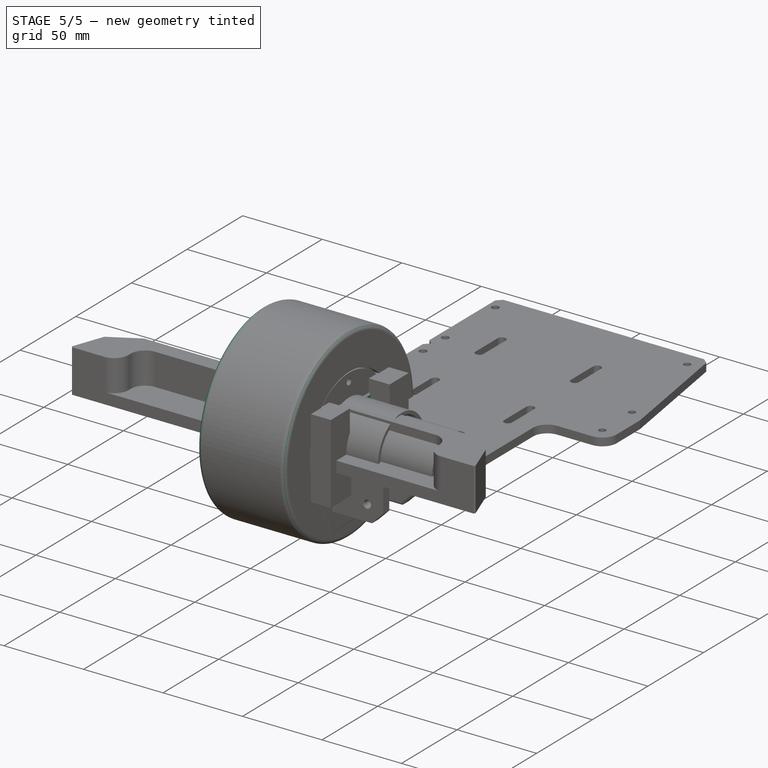
[diagram: stage 5 of 5 — iso view after this stage's code; geometry added in this stage tinted green]
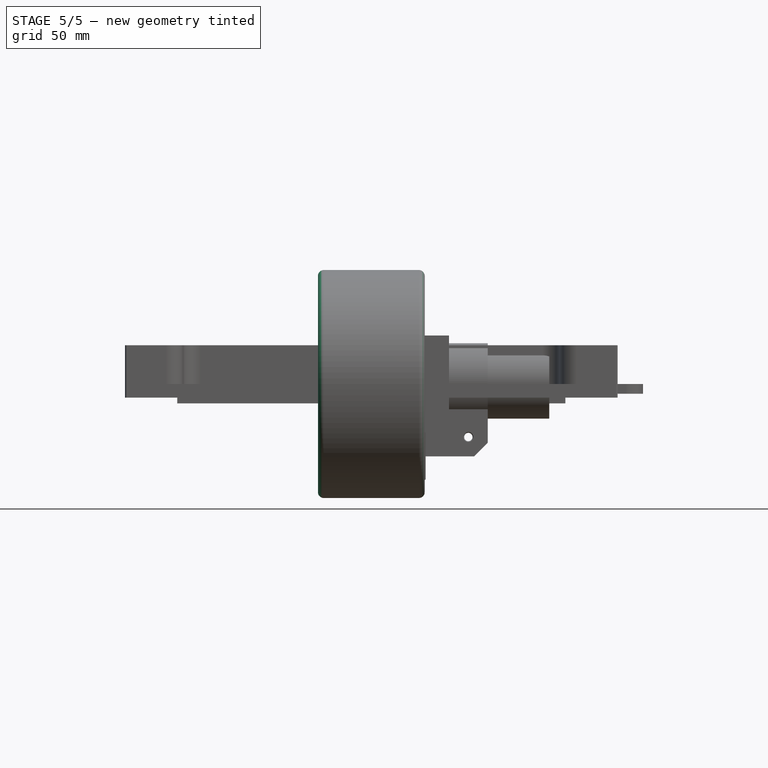
[diagram: stage 5 of 5 — front view after this stage's code; geometry added in this stage tinted green]
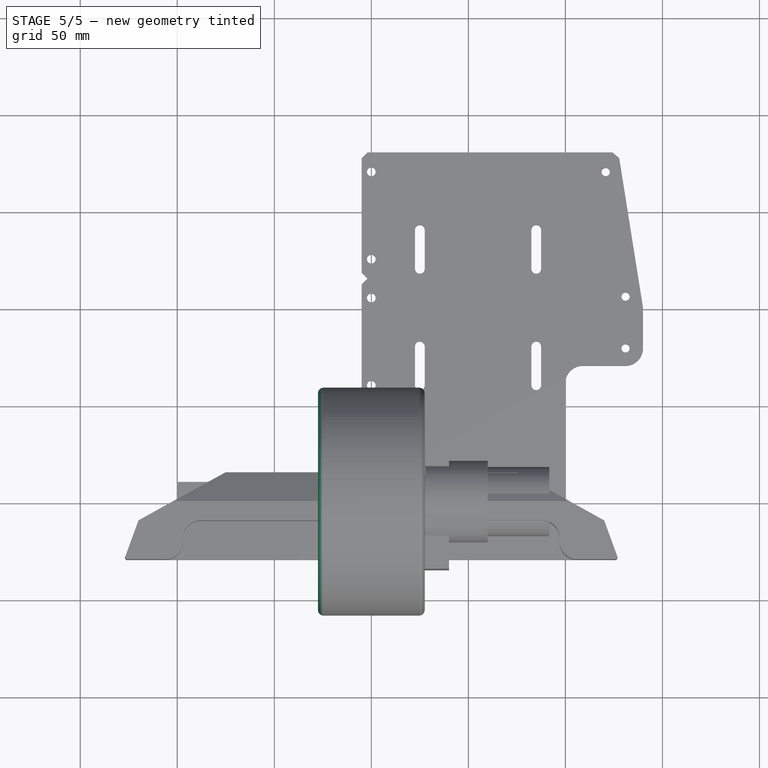
[diagram: stage 5 of 5 — top view after this stage's code; geometry added in this stage tinted green]
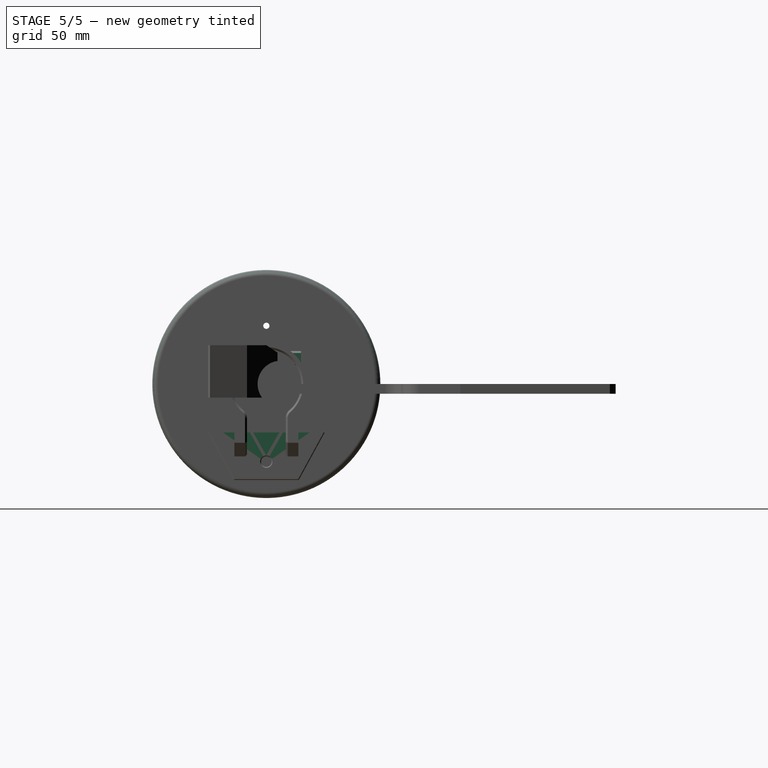
[diagram: stage 5 of 5 — right view after this stage's code; geometry added in this stage tinted green]
FEATURE [PartDesign::Body] Body002  label="Berceau"
  AutoGroupSolids = false
  ClaimAllChildren = false
  ExportMode = 0
  FixShape = 1
  Group = -> [Sketch005,Import,Pad004,Sketch007,Import001,Pocket002]
  InvalidShape = false
  Origin = -> Origin002
  SingleSolid = true
  Tip = -> Pocket002
  TreeRank = 41
  ValidateShape = false
  _ExportChildren = -> [Import,Pad004,Import001,Pocket002]
  _GroupVersion = 1
FEATURE [Sketcher::SketchObject] Sketch008
  ArcFitTolerance = 1e-06
  AttachmentSupport = -> [YZ_Plane003]
  ExternalBSplineMaxDegree = 5
  ExternalBSplineTolerance = 0.0001
  FixShape = 1
  FullyConstrained = true
  InternalTolerance = 1e-06
  InvalidShape = false
  MakeInternals = false
  MapMode = 5
  Placement = pos=(0,0,0) rot=(0.57735,0.57735,0.57735;2.0944rad)
  Support = -> [YZ_Plane003]
  TreeRank = 60
  ValidateShape = false
  sketch-geometry (2):
    g0: Circle CenterX=0 CenterY=0 CenterZ=0 NormalX=0 NormalY=0 NormalZ=1 AngleXU=0 Radius=54
    g1: Circle CenterX=0 CenterY=0 CenterZ=0 NormalX=0 NormalY=0 NormalZ=1 AngleXU=0 Radius=40
  constraints (4):
    c: Coincident(g0,g-1)
    c: Diameter(g0) = 108
    c: Coincident(g1,g0)
    c: Diameter(g1) = 80
FEATURE [PartDesign::Pad] Pad005
  AddSubType = 0
  AlongSketchNormal = false
  AutoTaperInnerAngle = true
  CheckUpToFaceLimits = true
  ClaimChildren = false
  Direction = (1,-2e-16,3e-16)
  Fit = 0
  FitJoin = 0
  FixShape = 1
  InnerFit = 0
  InnerFitJoin = 0
  InvalidShape = false
  Length = 50
  Length2 = 10
  Linearize = true
  Midplane = true
  NewSolid = false
  Profile = -> Sketch008
  ReferenceAxis = -> Sketch008 [N_Axis]
  Refine = true
  Suppress = false
  TaperInnerAngle = 0
  TaperInnerAngleRev = 0
  TreeRank = 61
  Type = 0
  ValidateShape = false
  _ProfileBasedVersion = 1
FEATURE [PartDesign::Fillet] Fillet
  AddSubType = 0
  Base = -> Pad005 [Edge2,Edge3]
  BaseFeature = -> Pad005
  FixShape = 1
  InvalidShape = false
  NewSolid = false
  Radius = 3
  Refine = true
  SupportTransform = false
  Suppress = false
  TreeRank = 62
  UseAllEdges = false
  ValidateShape = false
FEATURE [PartDesign::Chamfer] Chamfer
  AddSubType = 0
  Angle = 45
  Base = -> Fillet [Edge8,Face6]
  BaseFeature = -> Fillet
  ChamferType = 0
  FixShape = 1
  FlipDirection = false
  InvalidShape = false
  NewSolid = false
  Refine = true
  Size = 1
  Size2 = 1
  SupportTransform = false
  Suppress = false
  TreeRank = 63
  UseAllEdges = false
  ValidateShape = false
FEATURE [PartDesign::Mirrored] Mirrored
  AddSubType = 0
  BaseFeature = -> Pad008
  CopyShape = false
  FixShape = 1
  InvalidShape = false
  MirrorPlane = -> YZ_Plane005
  NewSolid = false
  OriginalSubs = -> [Pad008]
  Originals = -> [Pad008]
  ParallelTransform = true
  Refine = true
  SubTransform = true
  Suppress = false
  TreeRank = 93
  ValidateShape = false
  _Version = 3
FEATURE [PartDesign::Fillet] Fillet001
  AddSubType = 0
  Base = -> Mirrored [Edge10,Edge11]
  BaseFeature = -> Mirrored
  FixShape = 1
  InvalidShape = false
  NewSolid = false
  Radius = 3
  Refine = true
  SupportTransform = false
  Suppress = false
  TreeRank = 94
  UseAllEdges = false
  ValidateShape = false
FEATURE [PartDesign::Body] Body007  label="MotorMount"
  AutoGroupSolids = false
  ClaimAllChildren = false
  ExportMode = 0
  Group = -> [Sketch019,Pad012,Sketch020,Pad013,Sketch021,Pocket007,Chamfer001,Chamfer002,Chamfer003,Fillet002,Chamfer004]
  InvalidShape = false
  Origin = -> Origin009
  Tip = -> Chamfer004
  TreeRank = 146
  ValidateShape = false
  _ExportChildren = -> [Pad012,Pad013,Pocket007,Chamfer001,Chamfer002,Chamfer003,Fillet002,Chamfer004]
  _GroupVersion = 1
FEATURE [App::Part] Part001  label="EnsembleMoteur"
  ClaimAllChildren = false
  ExportMode = 1
  Group = -> [Body002,Body001,Body,Body007]
  Origin = -> Origin007
  Placement = pos=(-100,0,0) rot=(0,0,1;0rad)
  TreeRank = 102
  _ExportChildren = -> [Body002,Body001,Body,Body007]
  _GroupVersion = 1
FEATURE [Sketcher::SketchObject] Sketch022
  ArcFitTolerance = 1e-06
  AttachmentSupport = -> [YZ_Plane009]
  ExternalBSplineMaxDegree = 5
  ExternalBSplineTolerance = 0.0001
  FullyConstrained = true
  InternalTolerance = 1e-06
  InvalidShape = false
  MakeInternals = false
  MapMode = 5
  Placement = pos=(0,0,0) rot=(0.57735,0.57735,0.57735;2.0944rad)
  Support = -> [YZ_Plane009]
  TreeRank = 168
  ValidateShape = false
  sketch-geometry (16):
    g0: LineSegment StartX=-35 StartY=17 StartZ=0 EndX=-35 EndY=-17 EndZ=0
    g1: LineSegment StartX=-35 StartY=17 StartZ=0 EndX=35 EndY=17 EndZ=0
    g2: LineSegment StartX=35 StartY=17 StartZ=0 EndX=35 EndY=-17 EndZ=0
    g3: LineSegment StartX=35 StartY=-17 StartZ=0 EndX=17 EndY=-50 EndZ=0
    g4: LineSegment StartX=17 StartY=-50 StartZ=0 EndX=-17 EndY=-50 EndZ=0
    g5: LineSegment StartX=-17 StartY=-50 StartZ=0 EndX=-35 EndY=-17 EndZ=0
    g6: LineSegment [constr] StartX=-35 StartY=10 StartZ=0 EndX=-35 EndY=-10 EndZ=0
    g7: LineSegment [constr] StartX=-35 StartY=-10 StartZ=0 EndX=35 EndY=-10 EndZ=0
    g8: LineSegment [constr] StartX=35 StartY=-10 StartZ=0 EndX=35 EndY=10 EndZ=0
    g9: LineSegment [constr] StartX=35 StartY=10 StartZ=0 EndX=-35 EndY=10 EndZ=0
    g10: GeomPoint [constr] X=0 Y=0 Z=0
    g11: LineSegment [constr] StartX=-10 StartY=-50 StartZ=0 EndX=-10 EndY=-10 EndZ=0
    g12: LineSegment [constr] StartX=-10 StartY=-10 StartZ=0 EndX=10 EndY=-10 EndZ=0
    g13: LineSegment [constr] StartX=10 StartY=-10 StartZ=0 EndX=10 EndY=-50 EndZ=0
    g14: LineSegment [constr] StartX=10 StartY=-50 StartZ=0 EndX=-10 EndY=-50 EndZ=0
    g15: GeomPoint [constr] X=0 Y=-30 Z=0
  constraints (41):
    c: Vertical(g0)
    c: Coincident(g0,g1)
    c: Horizontal(g1)
    c: Coincident(g1,g2)
    c: Vertical(g2)
    c: Coincident(g2,g3)
    c: Coincident(g3,g4)
    c: Coincident(g4,g5)
    c: Coincident(g5,g0)
    c: Symmetric(g0,g2,g-2)
    c: Symmetric(g3,g4,g-2)
    c: Coincident(g6,g7)
    c: Coincident(g7,g8)
    c: Coincident(g8,g9)
    c: Coincident(g9,g6)
    c: Horizontal(g7)
    c: Horizontal(g9)
    c: Vertical(g6)
    c: Vertical(g8)
    c: Symmetric(g7,g6,g10)
    c: Coincident(g10,g-1)
    c: PointOnObject(g7,g2)
    c: Coincident(g11,g12)
    c: Coincident(g12,g13)
    c: Coincident(g13,g14)
    c: Coincident(g14,g11)
    c: Horizontal(g12)
    c: Horizontal(g14)
    c: Vertical(g11)
    c: Vertical(g13)
    c: Symmetric(g12,g11,g15)
    c: PointOnObject(g15,g-2)
    c: PointOnObject(g12,g7)
    c: PointOnObject(g13,g4)
    c: DistanceX(g11,g12) = 20
    c: DistanceY(g7,g8) = 20
    c: DistanceY(g8,g1) = 7
    c: DistanceX(g10,g8) = 35
    c: DistanceY(g2,g7) = 7
    c: DistanceX(g13,g3) = 7
    c: DistanceY(g13,g12) = 40
FEATURE [PartDesign::Pad] Pad014
  AddSubType = 0
  AlongSketchNormal = false
  AutoTaperInnerAngle = true
  CheckUpToFaceLimits = true
  ClaimChildren = false
  Direction = (1,-2e-16,3e-16)
  Fit = 0
  FitJoin = 0
  InnerFit = 0
  InnerFitJoin = 0
  InvalidShape = false
  Length = 28
  Length2 = 10
  Linearize = true
  NewSolid = false
  Profile = -> Sketch022
  ReferenceAxis = -> Sketch022 [N_Axis]
  Refine = true
  Suppress = false
  TaperInnerAngle = 0
  TaperInnerAngleRev = 0
  TreeRank = 169
  Type = 0
  ValidateShape = true
  _ProfileBasedVersion = 1
FEATURE [Sketcher::SketchObject] Sketch023
  ArcFitTolerance = 1e-06
  AttachmentSupport = -> [YZ_Plane009]
  ExternalBSplineMaxDegree = 5
  ExternalBSplineTolerance = 0.0001
  ExternalGeometry = -> [Pad014]
  FullyConstrained = true
  InternalTolerance = 1e-06
  InvalidShape = false
  MakeInternals = false
  MapMode = 5
  Placement = pos=(0,0,0) rot=(0.57735,0.57735,0.57735;2.0944rad)
  Support = -> [YZ_Plane009]
  TreeRank = 170
  ValidateShape = false
  sketch-geometry (18):
    g0: LineSegment [constr] StartX=35 StartY=-10 StartZ=0 EndX=35 EndY=10 EndZ=0
    g1: LineSegment [constr] StartX=35 StartY=10 StartZ=0 EndX=-35 EndY=10 EndZ=0
    g2: LineSegment [constr] StartX=-35 StartY=10 StartZ=0 EndX=-35 EndY=-10 EndZ=0
    g3: LineSegment [constr] StartX=-35 StartY=-10 StartZ=0 EndX=35 EndY=-10 EndZ=0
    g4: GeomPoint [constr] X=0 Y=0 Z=0
    g5: LineSegment [constr] StartX=10 StartY=-50 StartZ=0 EndX=10 EndY=-10 EndZ=0
    g6: LineSegment [constr] StartX=10 StartY=-10 StartZ=0 EndX=-10 EndY=-10 EndZ=0
    g7: LineSegment [constr] StartX=-10 StartY=-10 StartZ=0 EndX=-10 EndY=-50 EndZ=0
    g8: LineSegment [constr] StartX=-10 StartY=-50 StartZ=0 EndX=10 EndY=-50 EndZ=0
    g9: GeomPoint [constr] X=0 Y=-30 Z=0
    g10: LineSegment StartX=-35 StartY=10 StartZ=0 EndX=35 EndY=10 EndZ=0
    g11: LineSegment StartX=35 StartY=-10 StartZ=0 EndX=35 EndY=10 EndZ=0
    g12: LineSegment StartX=35 StartY=-10 StartZ=0 EndX=10 EndY=-10 EndZ=0
    g13: LineSegment StartX=10 StartY=-10 StartZ=0 EndX=10 EndY=-50 EndZ=0
    g14: LineSegment StartX=10 StartY=-50 StartZ=0 EndX=-10 EndY=-50 EndZ=0
    g15: LineSegment StartX=-10 StartY=-50 StartZ=0 EndX=-10 EndY=-10 EndZ=0
    g16: LineSegment StartX=-10 StartY=-10 StartZ=0 EndX=-35 EndY=-10 EndZ=0
    g17: LineSegment StartX=-35 StartY=-10 StartZ=0 EndX=-35 EndY=10 EndZ=0
  constraints (41):
    c: Coincident(g0,g1)
    c: Coincident(g1,g2)
    c: Coincident(g2,g3)
    c: Coincident(g3,g0)
    c: Horizontal(g1)
    c: Horizontal(g3)
    c: Vertical(g0)
    c: Vertical(g2)
    c: Symmetric(g1,g0,g4)
    c: Coincident(g4,g-1)
    c: Coincident(g5,g6)
    c: Coincident(g6,g7)
    c: Coincident(g7,g8)
    c: Coincident(g8,g5)
    c: Horizontal(g6)
    c: Horizontal(g8)
    c: Vertical(g5)
    c: Vertical(g7)
    c: Symmetric(g6,g5,g9)
    c: PointOnObject(g9,g-2)
    c: PointOnObject(g6,g3)
    c: PointOnObject(g1,g-3)
    c: PointOnObject(g7,g-4)
    c: Equal(g8,g2)
    c: DistanceY(g2,g1) = 20
    c: Coincident(g10,g1)
    c: Coincident(g10,g0)
    c: Coincident(g11,g0)
    c: Coincident(g11,g10)
    c: Coincident(g12,g11)
    c: Coincident(g12,g5)
    c: Coincident(g12,g13)
    c: Coincident(g13,g5)
    c: Coincident(g13,g14)
    c: Coincident(g14,g7)
    c: Coincident(g14,g15)
    c: Coincident(g15,g6)
    c: Coincident(g15,g16)
    c: Coincident(g16,g2)
    c: Coincident(g16,g17)
    c: Coincident(g17,g10)
FEATURE [PartDesign::Pocket] Pocket008
  AddSubType = 1
  AlongSketchNormal = false
  AutoTaperInnerAngle = true
  BaseFeature = -> Pad014
  CheckUpToFaceLimits = true
  ClaimChildren = false
  Direction = (-1,2e-16,-3e-16)
  Fit = 0
  FitJoin = 0
  InnerFit = 0
  InnerFitJoin = 0
  InvalidShape = false
  Length = 20
  Length2 = 10
  Linearize = true
  NewSolid = false
  Profile = -> Sketch023
  ReferenceAxis = -> Sketch023 [N_Axis]
  Refine = true
  Reversed = true
  Suppress = false
  TaperInnerAngle = 0
  TaperInnerAngleRev = 0
  TreeRank = 171
  Type = 0
  ValidateShape = true
  _ProfileBasedVersion = 1
  _Version = 1
FEATURE [Sketcher::SketchObject] Sketch024
  ArcFitTolerance = 1e-06
  AttachmentSupport = -> [YZ_Plane009]
  ExternalBSplineMaxDegree = 5
  ExternalBSplineTolerance = 0.0001
  FullyConstrained = true
  InternalTolerance = 1e-06
  InvalidShape = false
  MakeInternals = false
  MapMode = 5
  Placement = pos=(0,0,0) rot=(0.57735,0.57735,0.57735;2.0944rad)
  Support = -> [YZ_Plane009]
  TreeRank = 172
  ValidateShape = false
  sketch-geometry (3):
    g0: Circle CenterX=-22.5 CenterY=0 CenterZ=0 NormalX=0 NormalY=0 NormalZ=1 AngleXU=0 Radius=2.2
    g1: Circle CenterX=22.5 CenterY=0 CenterZ=0 NormalX=0 NormalY=0 NormalZ=1 AngleXU=0 Radius=2.2
    g2: Circle CenterX=0 CenterY=-40 CenterZ=0 NormalX=0 NormalY=0 NormalZ=1 AngleXU=0 Radius=2.2
  constraints (8):
    c: PointOnObject(g0,g-1)
    c: Equal(g1,g0)
    c: PointOnObject(g2,g-2)
    c: Equal(g2,g1)
    c: Diameter(g1) = 4.4
    c: Symmetric(g0,g1,g-1)
    c: DistanceX(g0,g1) = 45
    c: DistanceY(g2,g-1) = 40
FEATURE [PartDesign::Pocket] Pocket009
  AddSubType = 1
  AlongSketchNormal = false
  AutoTaperInnerAngle = true
  BaseFeature = -> Pocket008
  CheckUpToFaceLimits = true
  ClaimChildren = false
  Direction = (-1,2e-16,-3e-16)
  Fit = 0
  FitJoin = 0
  InnerFit = 0
  InnerFitJoin = 0
  InvalidShape = false
  Length = 5
  Length2 = 10
  Linearize = true
  NewSolid = false
  Profile = -> Sketch024
  ReferenceAxis = -> Sketch024 [N_Axis]
  Refine = true
  Reversed = true
  Suppress = false
  TaperInnerAngle = 0
  TaperInnerAngleRev = 0
  TreeRank = 173
  Type = 1
  ValidateShape = true
  _ProfileBasedVersion = 1
  _Version = 1
FEATURE [Sketcher::SketchObject] Sketch025
  ArcFitTolerance = 1e-06
  AttachmentSupport = -> [XY_Plane009]
  ExternalBSplineMaxDegree = 5
  ExternalBSplineTolerance = 0.0001
  FullyConstrained = true
  InternalTolerance = 1e-06
  InvalidShape = false
  MakeInternals = false
  MapMode = 5
  Support = -> [XY_Plane009]
  TreeRank = 174
  ValidateShape = false
  sketch-geometry (2):
    g0: Circle CenterX=10 CenterY=22.5 CenterZ=0 NormalX=0 NormalY=0 NormalZ=1 AngleXU=0 Radius=2.25
    g1: Circle CenterX=10 CenterY=-22.5 CenterZ=0 NormalX=0 NormalY=0 NormalZ=1 AngleXU=0 Radius=2.25
  constraints (5):
    c: Symmetric(g0,g1,g-1)
    c: Equal(g0,g1)
    c: Diameter(g0) = 4.5
    c: DistanceY(g1,g0) = 45
    c: DistanceX(g-1,g1) = 10
FEATURE [PartDesign::Pocket] Pocket010
  AddSubType = 1
  AlongSketchNormal = false
  AutoTaperInnerAngle = true
  BaseFeature = -> Pocket009
  CheckUpToFaceLimits = true
  ClaimChildren = false
  Direction = (0,0,-1)
  Fit = 0
  FitJoin = 0
  InnerFit = 0
  InnerFitJoin = 0
  InvalidShape = false
  Length = 5
  Length2 = 10
  Linearize = true
  NewSolid = false
  Profile = -> Sketch025
  ReferenceAxis = -> Sketch025 [N_Axis]
  Refine = true
  Reversed = true
  Suppress = false
  TaperInnerAngle = 0
  TaperInnerAngleRev = 0
  TreeRank = 175
  Type = 1
  ValidateShape = true
  _ProfileBasedVersion = 1
  _Version = 1
FEATURE [Sketcher::SketchObject] Sketch026
  ArcFitTolerance = 1e-06
  AttachmentSupport = -> [XZ_Plane009]
  ExternalBSplineMaxDegree = 5
  ExternalBSplineTolerance = 0.0001
  FullyConstrained = true
  InternalTolerance = 1e-06
  InvalidShape = false
  MakeInternals = false
  MapMode = 5
  Placement = pos=(0,0,0) rot=(1,0,0;1.5708rad)
  Support = -> [XZ_Plane009]
  TreeRank = 176
  ValidateShape = false
  sketch-geometry (1):
    g0: Circle CenterX=10 CenterY=-30 CenterZ=0 NormalX=0 NormalY=0 NormalZ=1 AngleXU=0 Radius=2.25
  constraints (3):
    c: Diameter(g0) = 4.5
    c: DistanceX(g-1,g0) = 10
    c: DistanceY(g0,g-1) = 30
FEATURE [PartDesign::Pocket] Pocket011
  AddSubType = 1
  AlongSketchNormal = false
  AutoTaperInnerAngle = true
  BaseFeature = -> Pocket010
  CheckUpToFaceLimits = true
  ClaimChildren = false
  Direction = (0,1,-2e-16)
  Fit = 0
  FitJoin = 0
  InnerFit = 0
  InnerFitJoin = 0
  InvalidShape = false
  Length = 5
  Length2 = 10
  Linearize = true
  Midplane = true
  NewSolid = false
  Profile = -> Sketch026
  ReferenceAxis = -> Sketch026 [N_Axis]
  Refine = true
  Suppress = false
  TaperInnerAngle = 0
  TaperInnerAngleRev = 0
  TreeRank = 177
  Type = 1
  ValidateShape = true
  _ProfileBasedVersion = 1
  _Version = 1
FEATURE [PartDesign::Plane] DatumPlane
  AttachmentOffset = pos=(0,0,-7) rot=(0,0,1;0rad)
  AttachmentSupport = -> [Pocket011]
  InvalidShape = false
  Length = 28
  MapMode = 5
  MinimumLength = 10
  MinimumWidth = 10
  Placement = pos=(3.8e-15,17,-3.8e-15) rot=(1,0,0;1.5708rad)
  ResizeMode = 0
  Support = -> [Pocket011]
  TreeRank = 178
  ValidateShape = false
  Width = 67
FEATURE [Sketcher::SketchObject] Sketch027
  ArcFitTolerance = 1e-06
  AttachmentSupport = -> [DatumPlane]
  ExternalBSplineMaxDegree = 5
  ExternalBSplineTolerance = 0.0001
  ExternalGeometry = -> [Pocket011]
  FullyConstrained = true
  InternalTolerance = 1e-06
  InvalidShape = false
  MakeInternals = false
  MapMode = 5
  Placement = pos=(3.8e-15,17,-3.8e-15) rot=(1,0,0;1.5708rad)
  Support = -> [DatumPlane]
  TreeRank = 179
  ValidateShape = false
  sketch-geometry (1):
    g0: Circle CenterX=10 CenterY=-30 CenterZ=0 NormalX=0 NormalY=0 NormalZ=1 AngleXU=0 Radius=4.5
  constraints (2):
    c: Coincident(g0,g-3)
    c: Diameter(g0) = 9
FEATURE [PartDesign::Pocket] Pocket012
  AddSubType = 1
  AlongSketchNormal = false
  AutoTaperInnerAngle = true
  BaseFeature = -> Pocket011
  CheckUpToFaceLimits = true
  ClaimChildren = false
  Direction = (2e-16,1,-2e-16)
  Fit = 0
  FitJoin = 0
  InnerFit = 0
  InnerFitJoin = 0
  InvalidShape = false
  Length = 5
  Length2 = 10
  Linearize = true
  NewSolid = false
  Profile = -> Sketch027
  ReferenceAxis = -> Sketch027 [N_Axis]
  Refine = true
  Suppress = false
  TaperInnerAngle = 0
  TaperInnerAngleRev = 0
  TreeRank = 180
  Type = 1
  ValidateShape = true
  _ProfileBasedVersion = 1
  _Version = 1
FEATURE [PartDesign::Mirrored] Mirrored002
  AddSubType = 0
  BaseFeature = -> Pocket012
  CopyShape = false
  InvalidShape = false
  MirrorPlane = -> XZ_Plane009
  NewSolid = false
  OriginalSubs = -> [Pocket012]
  Originals = -> [Pocket012]
  ParallelTransform = true
  Refine = true
  SubTransform = true
  Suppress = false
  TreeRank = 181
  ValidateShape = true
  _Version = 3
FEATURE [PartDesign::Chamfer] Chamfer005
  AddSubType = 0
  Angle = 45
  Base = -> Mirrored002 [Edge1,Edge10,Edge28,Edge55,Edge44,Edge5]
  BaseFeature = -> Mirrored002
  ChamferType = 0
  FlipDirection = false
  InvalidShape = false
  NewSolid = false
  Refine = true
  Size = 8
  Size2 = 1
  SupportTransform = false
  Suppress = false
  TreeRank = 182
  UseAllEdges = false
  ValidateShape = true
FEATURE [PartDesign::Chamfer] Chamfer006
  AddSubType = 0
  Angle = 45
  Base = -> Chamfer005 [Face7,Edge31,Edge32,Edge15,Edge14,Edge66,Edge62,Edge82,Edge85,Edge77,Edge48,Edge25,Edge24,Edge26]
  BaseFeature = -> Chamfer005
  ChamferType = 0
  FlipDirection = false
  InvalidShape = false
  NewSolid = false
  Refine = true
  Size = 1
  Size2 = 1
  SupportTransform = false
  Suppress = false
  TreeRank = 183
  UseAllEdges = false
  ValidateShape = true
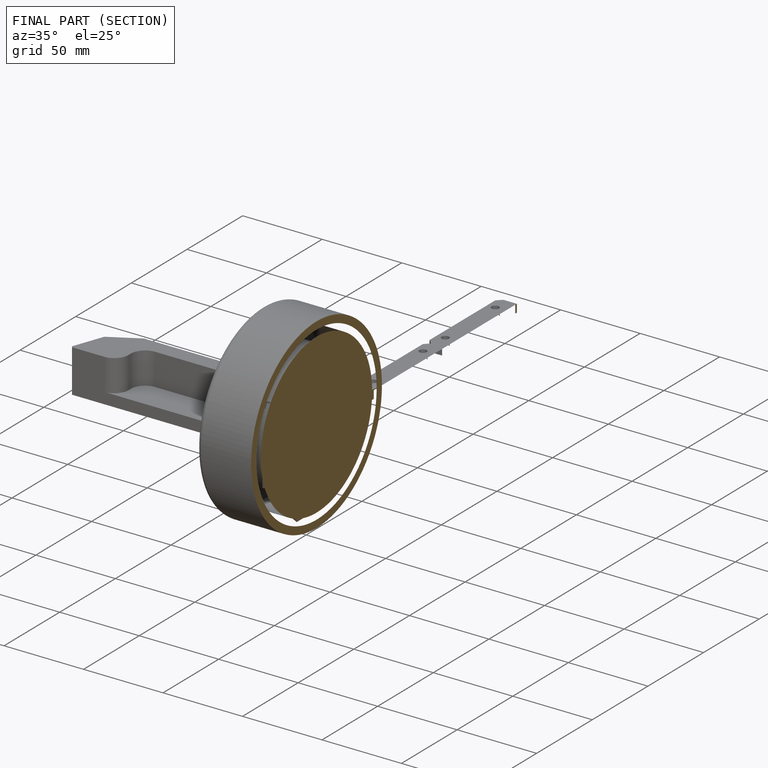
[diagram: finished part — half-section view (interior)]
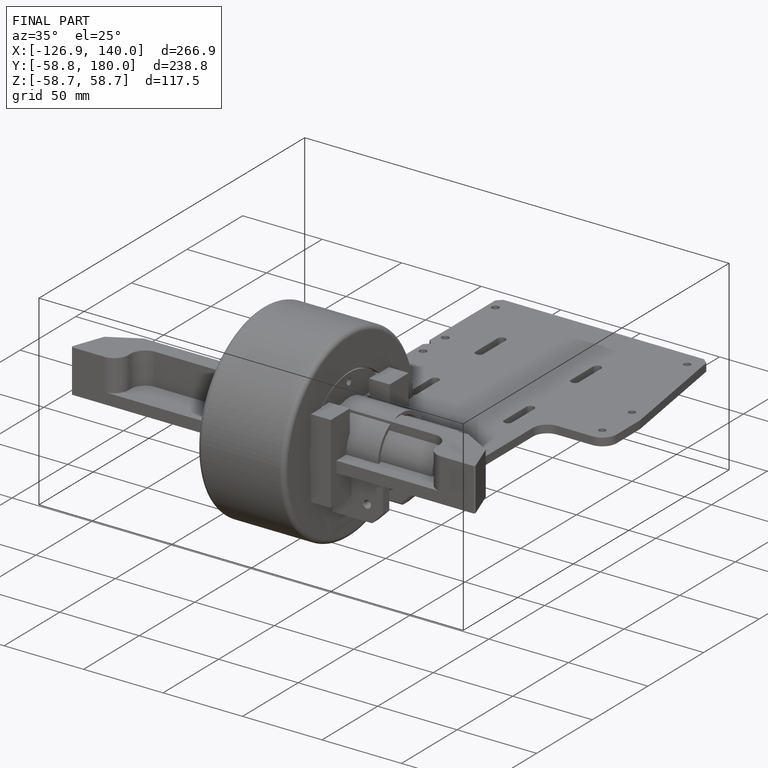
[diagram: finished part — iso view with bounding-box wireframe]
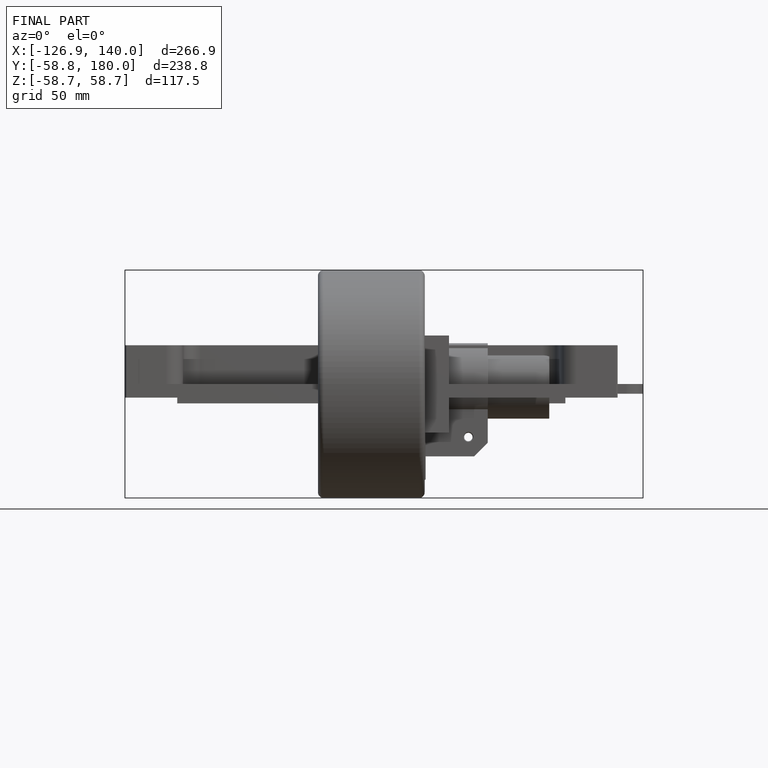
[diagram: finished part — front view with bounding-box wireframe]
